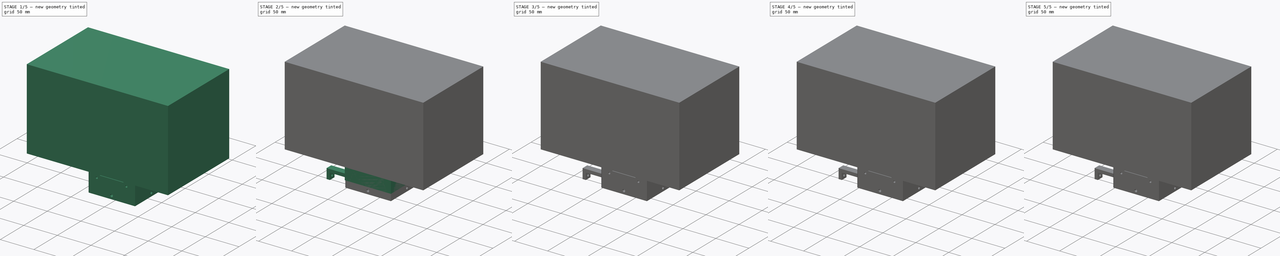
[diagram: build sequence overview — one tinted view per stage of 5, left to right]
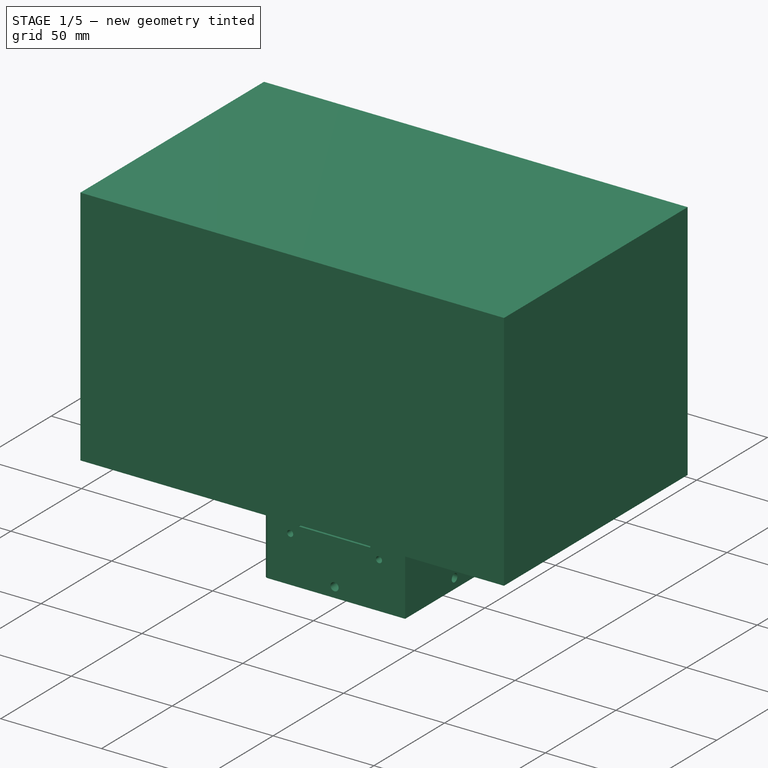
[diagram: stage 1 of 5 — iso view after this stage's code; geometry added in this stage tinted green]
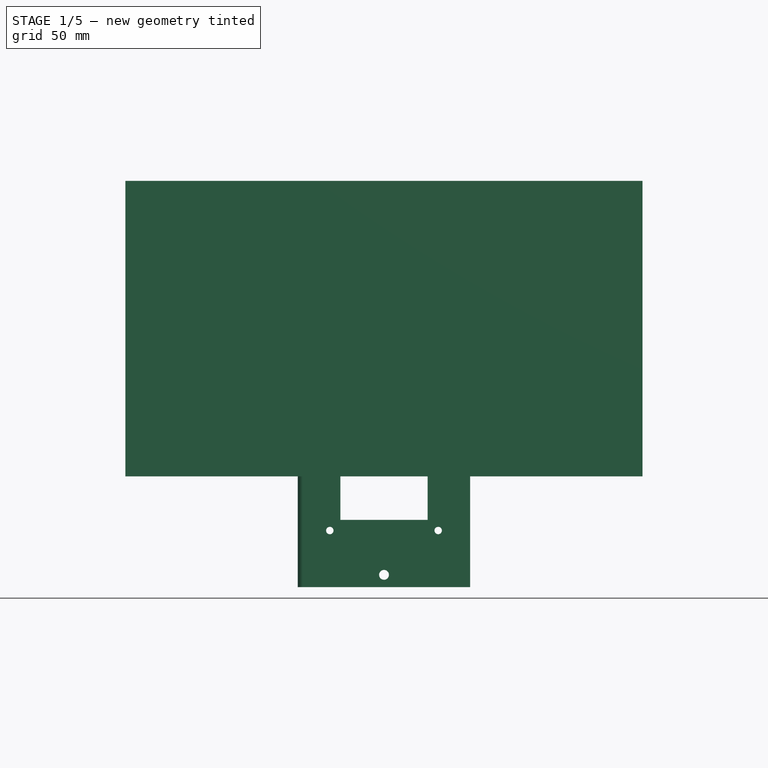
[diagram: stage 1 of 5 — front view after this stage's code; geometry added in this stage tinted green]
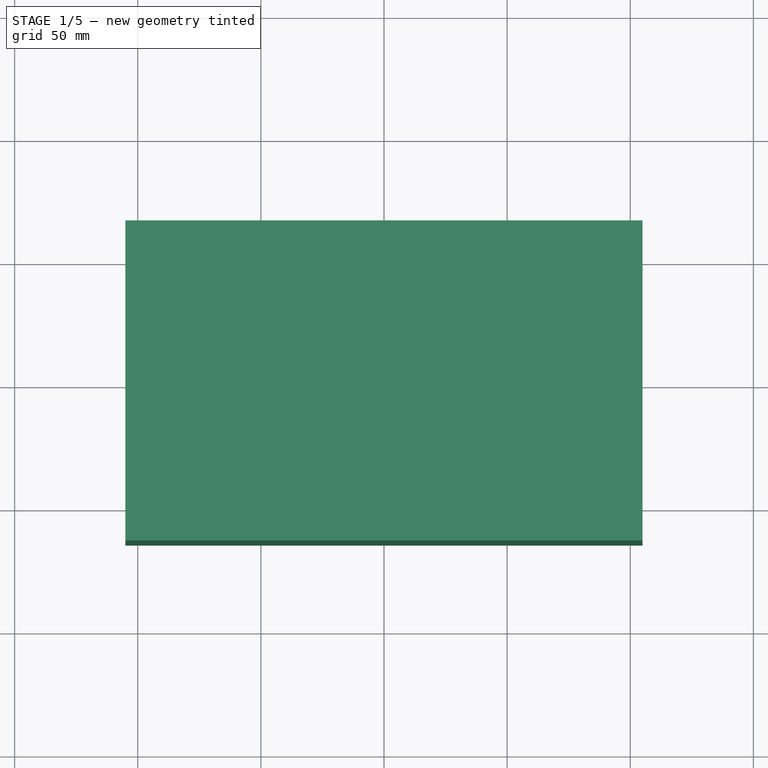
[diagram: stage 1 of 5 — top view after this stage's code; geometry added in this stage tinted green]
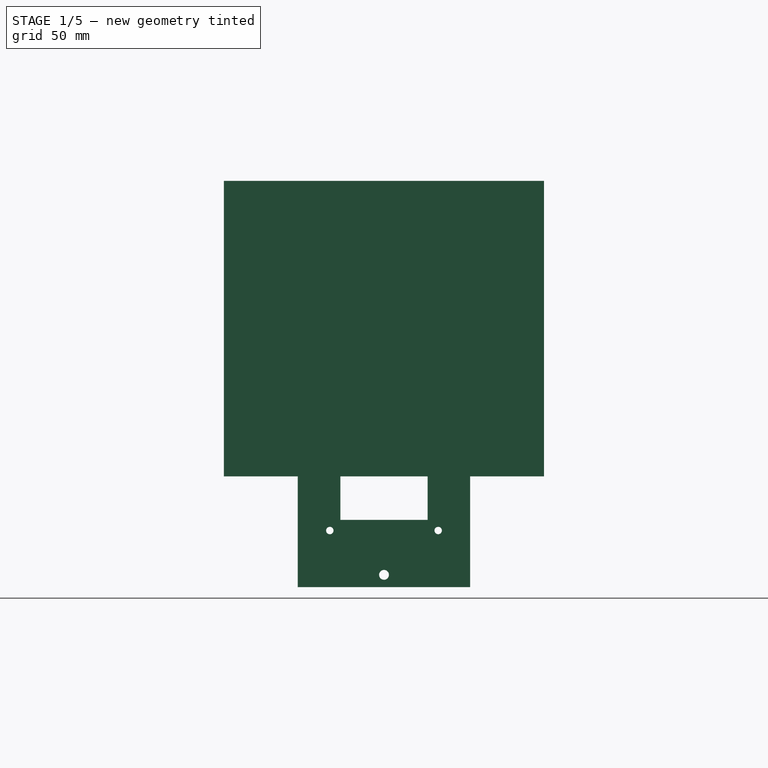
[diagram: stage 1 of 5 — right view after this stage's code; geometry added in this stage tinted green]
FCSTD DOCUMENT  (FreeCAD 0.21R33771 (Git))
Label: CELDA_UNICA_V8
License: All rights reserved
LicenseURL: https://en.wikipedia.org/wiki/All_rights_reserved
objects: Sketcher::SketchObject×60, PartDesign::Pocket×39, PartDesign::Pad×21, PartDesign::PolarPattern×16, PartDesign::Body×13, PartDesign::Fillet×2, PartDesign::Mirrored×1
note: 214 computed .brp shape members not serialized (recipe doc carries the construction recipe); baked Part::Feature solids carry a one-line shape summary decoded from their .brp

FEATURE [PartDesign::Body] Body029  label="BASE_H70"
  Group = -> [Sketch163,Pad052,Sketch164,Pocket100,PolarPattern044,Sketch165,Pocket101,PolarPattern045,Sketch166,Pocket102,PolarPattern046,Sketch167,Pocket103,Fillet004]
  Origin = -> Origin029
  Tip = -> Fillet004
FEATURE [Sketcher::SketchObject] Sketch168
  FullyConstrained = true
  MapMode = 5
  Support = -> [XY_Plane030]
  sketch-geometry (10):
    g0: LineSegment StartX=-27 StartY=-27 StartZ=0 EndX=-27 EndY=27 EndZ=0
    g1: LineSegment StartX=-27 StartY=27 StartZ=0 EndX=27 EndY=27 EndZ=0
    g2: LineSegment StartX=27 StartY=27 StartZ=0 EndX=27 EndY=-27 EndZ=0
    g3: LineSegment StartX=27 StartY=-27 StartZ=0 EndX=-27 EndY=-27 EndZ=0
    g4: GeomPoint X=0 Y=0 Z=0
    g5: LineSegment StartX=-35 StartY=-35 StartZ=0 EndX=-35 EndY=35 EndZ=0
    g6: LineSegment StartX=-35 StartY=35 StartZ=0 EndX=35 EndY=35 EndZ=0
    g7: LineSegment StartX=35 StartY=35 StartZ=0 EndX=35 EndY=-35 EndZ=0
    g8: LineSegment StartX=35 StartY=-35 StartZ=0 EndX=-35 EndY=-35 EndZ=0
    g9: GeomPoint X=0 Y=0 Z=0
  constraints (24):
    c: Coincident(g0,g1)
    c: Coincident(g1,g2)
    c: Coincident(g2,g3)
    c: Coincident(g3,g0)
    c: Horizontal(g1)
    c: Horizontal(g3)
    c: Vertical(g0)
    c: Vertical(g2)
    c: Symmetric(g1,g0,g4)
    c: Coincident(g4,g-1)
    c: Equal(g2,g1)
    c: Coincident(g5,g6)
    c: Coincident(g6,g7)
    c: Coincident(g7,g8)
    c: Coincident(g8,g5)
    c: Horizontal(g6)
    c: Horizontal(g8)
    c: Vertical(g5)
    c: Vertical(g7)
    c: Symmetric(g6,g5,g9)
    c: Coincident(g9,g4)
    c: Equal(g7,g6)
    c: DistanceY(g7,g7) = 70
    c: DistanceY(g1,g6) = 8
FEATURE [PartDesign::Pad] Pad053  label="Base010"
  Direction = (0,0,1)
  Length = 90
  Length2 = 10
  Midplane = true
  Profile = -> Sketch168
  ReferenceAxis = -> Sketch168 [N_Axis]
  Type = 0
FEATURE [Sketcher::SketchObject] Sketch169
  FullyConstrained = true
  MapMode = 5
  Placement = pos=(0,35,0) rot=(0,0.707107,0.707107;3.14159rad)
  Support = -> [Pad053]
  sketch-geometry (5):
    g0: LineSegment StartX=-17.7 StartY=-17.7 StartZ=0 EndX=-17.7 EndY=17.7 EndZ=0
    g1: LineSegment StartX=-17.7 StartY=17.7 StartZ=0 EndX=17.7 EndY=17.7 EndZ=0
    g2: LineSegment StartX=17.7 StartY=17.7 StartZ=0 EndX=17.7 EndY=-17.7 EndZ=0
    g3: LineSegment StartX=17.7 StartY=-17.7 StartZ=0 EndX=-17.7 EndY=-17.7 EndZ=0
    g4: GeomPoint X=0 Y=0 Z=0
  constraints (12):
    c: Coincident(g0,g1)
    c: Coincident(g1,g2)
    c: Coincident(g2,g3)
    c: Coincident(g3,g0)
    c: Horizontal(g1)
    c: Horizontal(g3)
    c: Vertical(g0)
    c: Vertical(g2)
    c: Symmetric(g1,g0,g4)
    c: Coincident(g4,g-1)
    c: Equal(g2,g1)
    c: DistanceY(g2,g2) = 35.4
FEATURE [PartDesign::Pocket] Pocket104  label="Hueco_componentes003"
  BaseFeature = -> Pad053
  Direction = (0,-1,2e-16)
  Length = 0
  Length2 = 5
  Profile = -> Sketch169
  ReferenceAxis = -> Sketch169 [N_Axis]
  Type = 2
FEATURE [PartDesign::PolarPattern] PolarPattern047  label="Patron polar hueco componentes003"
  Angle = 360
  Axis = -> Z_Axis030
  BaseFeature = -> Pocket104
  Occurrences = 4
  Originals = -> [Pocket104]
FEATURE [Sketcher::SketchObject] Sketch170
  ExternalGeometry = -> [PolarPattern047]
  FullyConstrained = true
  MapMode = 5
  Placement = pos=(0,35,0) rot=(0,0.707107,0.707107;3.14159rad)
  Support = -> [PolarPattern047]
  sketch-geometry (3):
    g0: GeomPoint X=0 Y=1e-16 Z=0
    g1: Circle CenterX=0 CenterY=40 CenterZ=0 NormalX=0 NormalY=0 NormalZ=1 AngleXU=0 Radius=2
    g2: Circle CenterX=0 CenterY=-40 CenterZ=0 NormalX=0 NormalY=0 NormalZ=1 AngleXU=0 Radius=2
  constraints (7):
    c: Coincident(g0,g-1)
    c: PointOnObject(g1,g-2)
    c: DistanceY(g1,g-3) = 5
    c: PointOnObject(g2,g-2)
    c: DistanceY(g-4,g2) = 5
    c: Equal(g1,g2)
    c: Diameter(g1) = 4
FEATURE [PartDesign::Pocket] Pocket105  label="Hueco tornillo tapas003"
  BaseFeature = -> PolarPattern047
  Direction = (0,-1,2e-16)
  Length = 10
  Length2 = 5
  Profile = -> Sketch170
  ReferenceAxis = -> Sketch170 [N_Axis]
  Type = 0
FEATURE [PartDesign::PolarPattern] PolarPattern048  label="Patron polar hueco tornillo tapas003"
  Angle = 360
  Axis = -> Z_Axis030
  BaseFeature = -> Pocket105
  Occurrences = 4
  Originals = -> [Pocket105]
FEATURE [Sketcher::SketchObject] Sketch171
  FullyConstrained = true
  MapMode = 5
  Placement = pos=(0,35,0) rot=(0,0.707107,0.707107;3.14159rad)
  Support = -> [PolarPattern048]
  sketch-geometry (4):
    g0: Circle CenterX=-22 CenterY=22 CenterZ=0 NormalX=0 NormalY=0 NormalZ=1 AngleXU=0 Radius=1.5
    g1: Circle CenterX=22 CenterY=22 CenterZ=0 NormalX=0 NormalY=0 NormalZ=1 AngleXU=0 Radius=1.5
    g2: Circle CenterX=-22 CenterY=-22 CenterZ=0 NormalX=0 NormalY=0 NormalZ=1 AngleXU=0 Radius=1.5
    g3: Circle CenterX=22 CenterY=-22 CenterZ=0 NormalX=0 NormalY=0 NormalZ=1 AngleXU=0 Radius=1.5
  constraints (12):
    c: Equal(g1,g0)
    c: Equal(g1,g2)
    c: Equal(g1,g3)
    c: Diameter(g1) = 3
    c: DistanceX(g2,g0) = 0
    c: DistanceY(g0,g1) = 0
    c: DistanceY(g3,g2) = 0
    c: DistanceX(g3,g1) = 0
    c: DistanceY(g-1,g0) = 22
    c: DistanceX(g0,g-1) = 22
    c: DistanceX(g-1,g3) = 22
    c: DistanceY(g3,g-1) = 22
FEATURE [PartDesign::Pocket] Pocket106  label="Hueco insertos pestaña exterior componentes003"
  BaseFeature = -> PolarPattern048
  Direction = (0,-1,2e-16)
  Length = 0
  Length2 = 5
  Profile = -> Sketch171
  ReferenceAxis = -> Sketch171 [N_Axis]
  Type = 1
FEATURE [PartDesign::PolarPattern] PolarPattern049  label="Patron polar hueco insertos pestaña exterior003"
  Angle = 360
  Axis = -> Z_Axis030
  BaseFeature = -> Pocket106
  Occurrences = 4
  Originals = -> [Pocket106]
FEATURE [Sketcher::SketchObject] Sketch172
  ExternalGeometry = -> [PolarPattern049]
  FullyConstrained = true
  MapMode = 5
  Placement = pos=(-35,0,0) rot=(0.57735,-0.57735,-0.57735;2.0944rad)
  Support = -> [PolarPattern049]
  sketch-geometry (5):
    g0: GeomPoint X=0 Y=0 Z=0
    g1: Circle CenterX=-30 CenterY=30 CenterZ=0 NormalX=0 NormalY=0 NormalZ=1 AngleXU=0 Radius=2
    g2: Circle CenterX=-30 CenterY=-30 CenterZ=0 NormalX=0 NormalY=0 NormalZ=1 AngleXU=0 Radius=2
    g3: Circle CenterX=30 CenterY=-30 CenterZ=0 NormalX=0 NormalY=0 NormalZ=1 AngleXU=0 Radius=2
    g4: Circle CenterX=30 CenterY=30 CenterZ=0 NormalX=0 NormalY=0 NormalZ=1 AngleXU=0 Radius=2
  constraints (13):
    c: Coincident(g0,g-1)
    c: Equal(g2,g3)
    c: Equal(g2,g4)
    c: Equal(g2,g1)
    c: Diameter(g2) = 4
    c: DistanceX(g2,g1) = 0
    c: DistanceY(g3,g2) = 0
    c: DistanceX(g4,g3) = 0
    c: DistanceY(g1,g4) = 0
    c: DistanceX(g1,g0) = 30
    c: DistanceY(g0,g1) = 30
    c: DistanceX(g0,g3) = 30
    c: DistanceY(g3,g0) = 30
FEATURE [PartDesign::Pocket] Pocket107  label="Hueco insertos pata apoyo003"
  BaseFeature = -> PolarPattern049
  Direction = (1,0,0)
  Length = 5
  Length2 = 5
  Profile = -> Sketch172
  ReferenceAxis = -> Sketch172 [N_Axis]
  Type = 0
FEATURE [PartDesign::Fillet] Fillet005
  Base = -> Pocket107 [Edge4,Edge1,Edge19,Edge44]
  BaseFeature = -> Pocket107
  Radius = 2
  SupportTransform = false
  UseAllEdges = false
FEATURE [PartDesign::Body] Body033  label="SOPORTE_LED_1_DIODO"
  Group = -> [Sketch178,Pad056,Sketch179,Pad057,Sketch180,Pocket111,Sketch181,Pocket112,Sketch182,Pocket113,Sketch184,Pocket115,PolarPattern050,Sketch185,Pocket116]
  Origin = -> Origin033
  Placement = pos=(173,-209,0) rot=(0,0,1;0rad)
  Tip = -> Pocket116
FEATURE [Sketcher::SketchObject] Sketch186
  FullyConstrained = true
  MapMode = 5
  Support = -> [XY_Plane034]
  sketch-geometry (5):
    g0: LineSegment StartX=-105 StartY=-65 StartZ=0 EndX=-105 EndY=65 EndZ=0
    g1: LineSegment StartX=-105 StartY=65 StartZ=0 EndX=105 EndY=65 EndZ=0
    g2: LineSegment StartX=105 StartY=65 StartZ=0 EndX=105 EndY=-65 EndZ=0
    g3: LineSegment StartX=105 StartY=-65 StartZ=0 EndX=-105 EndY=-65 EndZ=0
    g4: GeomPoint X=0 Y=0 Z=0
  constraints (12):
    c: Coincident(g0,g1)
    c: Coincident(g1,g2)
    c: Coincident(g2,g3)
    c: Coincident(g3,g0)
    c: Horizontal(g1)
    c: Horizontal(g3)
    c: Vertical(g0)
    c: Vertical(g2)
    c: Symmetric(g1,g0,g4)
    c: Coincident(g4,g-1)
    c: DistanceX(g3,g3) = 210
    c: DistanceY(g2,g2) = 130
FEATURE [PartDesign::Pad] Pad058  label="Base_Esxtrusion"
  Direction = (0,0,1)
  Length = 120
  Length2 = 10
  Profile = -> Sketch186
  ReferenceAxis = -> Sketch186 [N_Axis]
  Type = 0
FEATURE [Sketcher::SketchObject] Sketch187
  FullyConstrained = true
  MapMode = 5
  Placement = pos=(0,0,0) rot=(1,0,0;3.14159rad)
  Support = -> [Pad058]
  sketch-geometry (5):
    g0: LineSegment StartX=-102.5 StartY=-62.5 StartZ=0 EndX=-102.5 EndY=62.5 EndZ=0
    g1: LineSegment StartX=-102.5 StartY=62.5 StartZ=0 EndX=102.5 EndY=62.5 EndZ=0
    g2: LineSegment StartX=102.5 StartY=62.5 StartZ=0 EndX=102.5 EndY=-62.5 EndZ=0
    g3: LineSegment StartX=102.5 StartY=-62.5 StartZ=0 EndX=-102.5 EndY=-62.5 EndZ=0
    g4: GeomPoint X=0 Y=0 Z=0
  constraints (12):
    c: Coincident(g0,g1)
    c: Coincident(g1,g2)
    c: Coincident(g2,g3)
    c: Coincident(g3,g0)
    c: Horizontal(g1)
    c: Horizontal(g3)
    c: Vertical(g0)
    c: Vertical(g2)
    c: Symmetric(g1,g0,g4)
    c: Coincident(g4,g-1)
    c: DistanceX(g1,g1) = 205
    c: DistanceY(g2,g2) = 125
FEATURE [PartDesign::Pocket] Pocket117  label="Vaciado"
  BaseFeature = -> Pad058
  Direction = (0,0,1)
  Length = 115
  Length2 = 5
  Profile = -> Sketch187
  ReferenceAxis = -> Sketch187 [N_Axis]
  Type = 0
FEATURE [Sketcher::SketchObject] Sketch188
  ExternalGeometry = -> [Pocket117]
  FullyConstrained = true
  MapMode = 5
  Placement = pos=(0,0,115) rot=(1,0,0;3.14159rad)
  Support = -> [Pocket117]
  sketch-geometry (8):
    g0: Circle CenterX=-87.5 CenterY=47.5 CenterZ=0 NormalX=0 NormalY=0 NormalZ=1 AngleXU=0 Radius=6
    g1: Circle CenterX=-87.5 CenterY=-1.5 CenterZ=0 NormalX=0 NormalY=0 NormalZ=1 AngleXU=0 Radius=6
    g2: Circle CenterX=-29.5 CenterY=47.5 CenterZ=0 NormalX=0 NormalY=0 NormalZ=1 AngleXU=0 Radius=6
    g3: Circle CenterX=-29.5 CenterY=-1.5 CenterZ=0 NormalX=0 NormalY=0 NormalZ=1 AngleXU=0 Radius=6
    g4: Circle CenterX=-87.5 CenterY=-1.5 CenterZ=0 NormalX=0 NormalY=0 NormalZ=1 AngleXU=0 Radius=2
    g5: Circle CenterX=-87.5 CenterY=47.5 CenterZ=0 NormalX=0 NormalY=0 NormalZ=1 AngleXU=0 Radius=2
    g6: Circle CenterX=-29.5 CenterY=47.5 CenterZ=0 NormalX=0 NormalY=0 NormalZ=1 AngleXU=0 Radius=2
    g7: Circle CenterX=-29.5 CenterY=-1.5 CenterZ=0 NormalX=0 NormalY=0 NormalZ=1 AngleXU=0 Radius=2
  constraints (20):
    c: Coincident(g4,g1)
    c: Coincident(g5,g0)
    c: Coincident(g6,g2)
    c: Coincident(g7,g3)
    c: DistanceY(g1,g3) = 0
    c: DistanceX(g1,g0) = 0
    c: DistanceX(g2,g3) = 0
    c: DistanceY(g2,g0) = 0
    c: DistanceY(g1,g0) = 49
    c: DistanceX(g0,g2) = 58
    c: Equal(g5,g6)
    c: Equal(g5,g7)
    c: Equal(g5,g4)
    c: Diameter(g5) = 4
    c: Equal(g0,g2)
    c: Equal(g0,g3)
    c: Equal(g0,g1)
    c: Diameter(g0) = 12
    c: DistanceY(g0,g-4) = 15
    c: DistanceX(g-4,g0) = 15
FEATURE [PartDesign::Pad] Pad059  label="Soporte portenta"
  BaseFeature = -> Pocket117
  Direction = (0,0,-1)
  Length = 15
  Length2 = 10
  Profile = -> Sketch188
  ReferenceAxis = -> Sketch188 [N_Axis]
  Type = 0
FEATURE [Sketcher::SketchObject] Sketch189
  ExternalGeometry = -> [Pad059]
  FullyConstrained = true
  MapMode = 5
  Placement = pos=(0,0,115) rot=(1,0,0;3.14159rad)
  Support = -> [Pad059]
  sketch-geometry (4):
    g0: Circle CenterX=-87.5 CenterY=-26.5 CenterZ=0 NormalX=0 NormalY=0 NormalZ=1 AngleXU=0 Radius=5
    g1: Circle CenterX=-87.5 CenterY=-44.5 CenterZ=0 NormalX=0 NormalY=0 NormalZ=1 AngleXU=0 Radius=5
    g2: Circle CenterX=-87.5 CenterY=-26.5 CenterZ=0 NormalX=0 NormalY=0 NormalZ=1 AngleXU=0 Radius=2
    g3: Circle CenterX=-87.5 CenterY=-44.5 CenterZ=0 NormalX=0 NormalY=0 NormalZ=1 AngleXU=0 Radius=2
  constraints (10):
    c: Coincident(g2,g0)
    c: Coincident(g3,g1)
    c: DistanceY(g1,g0) = 18
    c: DistanceX(g0,g1) = 0
    c: DistanceX(g0,g-3) = 0
    c: DistanceY(g0,g-3) = 25
    c: Equal(g2,g3)
    c: Diameter(g2) = 4
    c: Equal(g0,g1)
    c: Diameter(g0) = 10
FEATURE [PartDesign::Pad] Pad060  label="Soporte_RTC"
  BaseFeature = -> Pad059
  Direction = (0,0,-1)
  Length = 15
  Length2 = 10
  Profile = -> Sketch189
  ReferenceAxis = -> Sketch189 [N_Axis]
  Type = 0
FEATURE [Sketcher::SketchObject] Sketch194
  ExternalGeometry = -> [Fillet005]
  FullyConstrained = true
  MapMode = 5
  Placement = pos=(0,0,45) rot=(0,0,1;0rad)
  Support = -> [Fillet005]
  sketch-geometry (7):
    g0: GeomPoint X=0 Y=0 Z=0
    g1: LineSegment StartX=-45 StartY=45 StartZ=0 EndX=-27 EndY=45 EndZ=0
    g2: LineSegment StartX=-27 StartY=45 StartZ=0 EndX=-27 EndY=27 EndZ=0
    g3: LineSegment StartX=-27 StartY=27 StartZ=0 EndX=-45 EndY=27 EndZ=0
    g4: LineSegment StartX=-45 StartY=27 StartZ=0 EndX=-45 EndY=45 EndZ=0
    g5: Circle CenterX=-40 CenterY=40 CenterZ=0 NormalX=0 NormalY=0 NormalZ=1 AngleXU=0 Radius=1.65
    g6: GeomPoint X=0 Y=0 Z=0
  constraints (16):
    c: Coincident(g0,g-1)
    c: Coincident(g1,g2)
    c: Coincident(g2,g3)
    c: Coincident(g3,g4)
    c: Coincident(g4,g1)
    c: Horizontal(g1)
    c: Horizontal(g3)
    c: Vertical(g2)
    c: Vertical(g4)
    c: Coincident(g2,g-3)
    c: DistanceX(g3,g3) = 18
    c: DistanceY(g4,g4) = 18
    c: Diameter(g5) = 3.3
    c: DistanceX(g1,g5) = 5
    c: DistanceY(g5,g1) = 5
    c: Coincident(g6,g0)
FEATURE [PartDesign::Pad] Pad063  label="Apaño sujeccion"
  BaseFeature = -> Fillet005
  Direction = (0,0,1)
  Length = 10
  Length2 = 10
  Profile = -> Sketch194
  ReferenceAxis = -> Sketch194 [N_Axis]
  Reversed = true
  Type = 0
FEATURE [PartDesign::Body] Body030  label="BASE_H90"
  Group = -> [Sketch168,Pad053,Sketch169,Pocket104,PolarPattern047,Sketch170,Pocket105,PolarPattern048,Sketch171,Pocket106,PolarPattern049,Sketch172,Pocket107,Fillet005,Sketch194,Pad063,PolarPattern051]
  Origin = -> Origin030
  Tip = -> PolarPattern051
FEATURE [Sketcher::SketchObject] Sketch195
  ExternalGeometry = -> [Sketch187]
  FullyConstrained = true
  MapMode = 5
  Placement = pos=(0,0,115) rot=(1,0,0;3.14159rad)
  Support = -> [Pad060]
  sketch-geometry (5):
    g0: LineSegment StartX=12.5 StartY=62.5 StartZ=0 EndX=102.5 EndY=62.5 EndZ=0
    g1: LineSegment StartX=102.5 StartY=62.5 StartZ=0 EndX=102.5 EndY=-27.5 EndZ=0
    g2: LineSegment StartX=102.5 StartY=-27.5 StartZ=0 EndX=12.5 EndY=-27.5 EndZ=0
    g3: LineSegment StartX=12.5 StartY=-27.5 StartZ=0 EndX=12.5 EndY=62.5 EndZ=0
    g4: Circle CenterX=57.5 CenterY=17.5 CenterZ=0 NormalX=0 NormalY=0 NormalZ=1 AngleXU=0 Radius=35
  constraints (15):
    c: Coincident(g0,g1)
    c: Coincident(g1,g2)
    c: Coincident(g2,g3)
    c: Coincident(g3,g0)
    c: Horizontal(g0)
    c: Horizontal(g2)
    c: Vertical(g1)
    c: Vertical(g3)
    c: DistanceX(g0,g0) = 90
    c: DistanceY(g3,g3) = 90
    c: DistanceX(g0,g-3) = 0
    c: DistanceY(g0,g-3) = 0
    c: Diameter(g4) = 70
    c: DistanceX(g4,g0) = 45
    c: DistanceY(g4,g0) = 45
FEATURE [PartDesign::Pad] Pad064  label="Soporte celda"
  BaseFeature = -> Pad060
  Direction = (0,0,-1)
  Length = 35
  Length2 = 10
  Profile = -> Sketch195
  ReferenceAxis = -> Sketch195 [N_Axis]
  Type = 0
FEATURE [Sketcher::SketchObject] Sketch196
  ExternalGeometry = -> [Pad064]
  FullyConstrained = true
  MapMode = 5
  Placement = pos=(0,0,80) rot=(1,0,0;3.14159rad)
  Support = -> [Pad064]
  sketch-geometry (4):
    g0: Circle CenterX=17.5 CenterY=57.5 CenterZ=0 NormalX=0 NormalY=0 NormalZ=1 AngleXU=0 Radius=2
    g1: Circle CenterX=97.5 CenterY=57.5 CenterZ=0 NormalX=0 NormalY=0 NormalZ=1 AngleXU=0 Radius=2
    g2: Circle CenterX=17.5 CenterY=-22.5 CenterZ=0 NormalX=0 NormalY=0 NormalZ=1 AngleXU=0 Radius=2
    g3: Circle CenterX=97.5 CenterY=-22.5 CenterZ=0 NormalX=0 NormalY=0 NormalZ=1 AngleXU=0 Radius=2
  constraints (12):
    c: DistanceY(g3,g2) = 0
    c: DistanceY(g1,g0) = 0
    c: DistanceX(g2,g0) = 0
    c: DistanceX(g3,g1) = 0
    c: DistanceX(g3,g-4) = 5
    c: DistanceY(g-4,g3) = 5
    c: DistanceX(g-3,g0) = 5
    c: DistanceY(g0,g-3) = 5
    c: Equal(g0,g1)
    c: Equal(g0,g3)
    c: Equal(g0,g2)
    c: Diameter(g0) = 4
FEATURE [PartDesign::Pocket] Pocket118
  BaseFeature = -> Pad064
  Direction = (0,0,1)
  Length = 20
  Length2 = 5
  Profile = -> Sketch196
  ReferenceAxis = -> Sketch196 [N_Axis]
  Type = 0
FEATURE [PartDesign::Body] Body034  label="CAJA"
  Group = -> [Sketch186,Pad058,Sketch187,Pocket117,Sketch188,Pad059,Sketch189,Pad060,Sketch195,Pad064,Sketch196,Pocket118]
  Origin = -> Origin034
  Tip = -> Pocket118
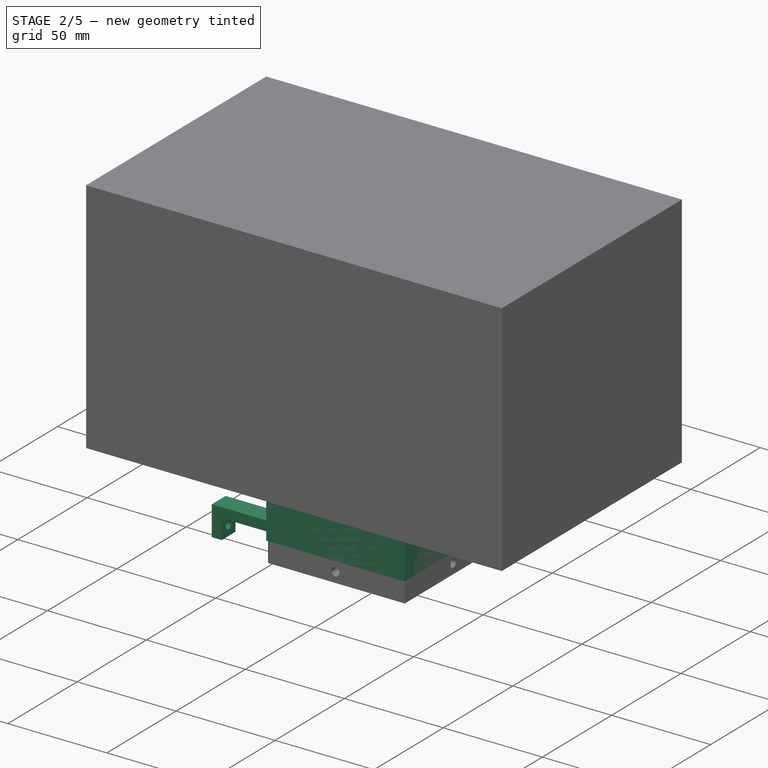
[diagram: stage 2 of 5 — iso view after this stage's code; geometry added in this stage tinted green]
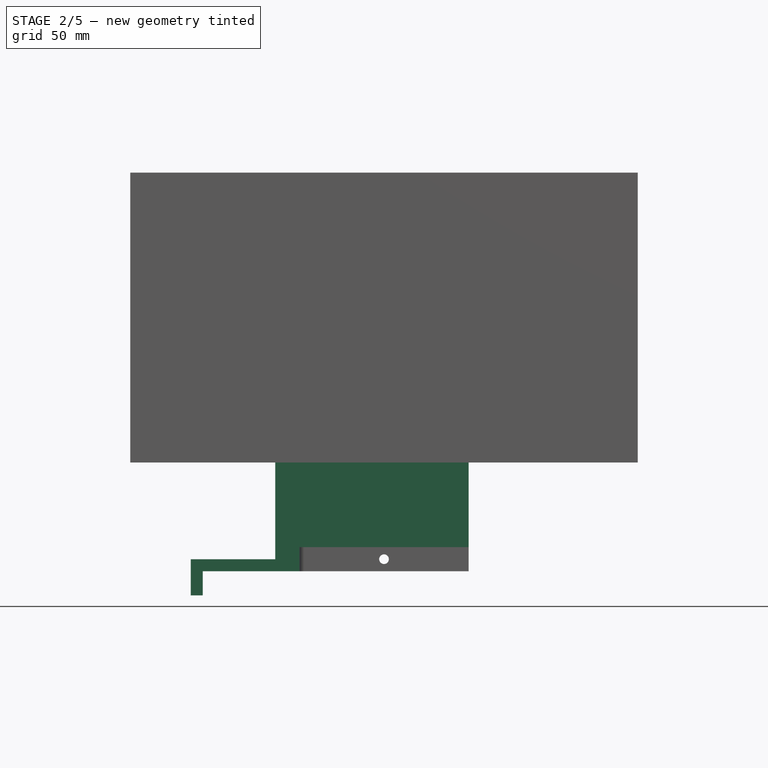
[diagram: stage 2 of 5 — front view after this stage's code; geometry added in this stage tinted green]
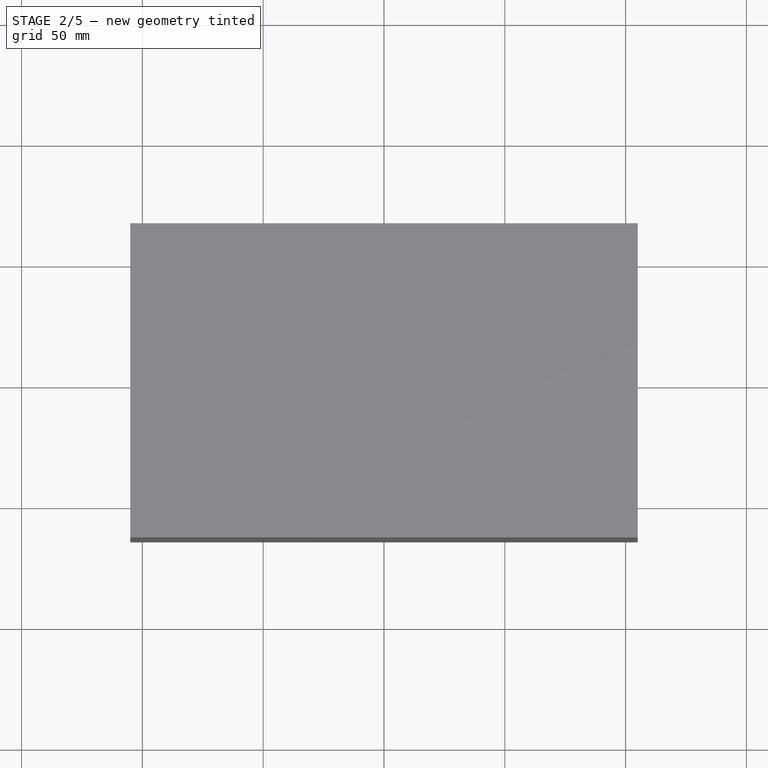
[diagram: stage 2 of 5 — top view after this stage's code; geometry added in this stage tinted green]
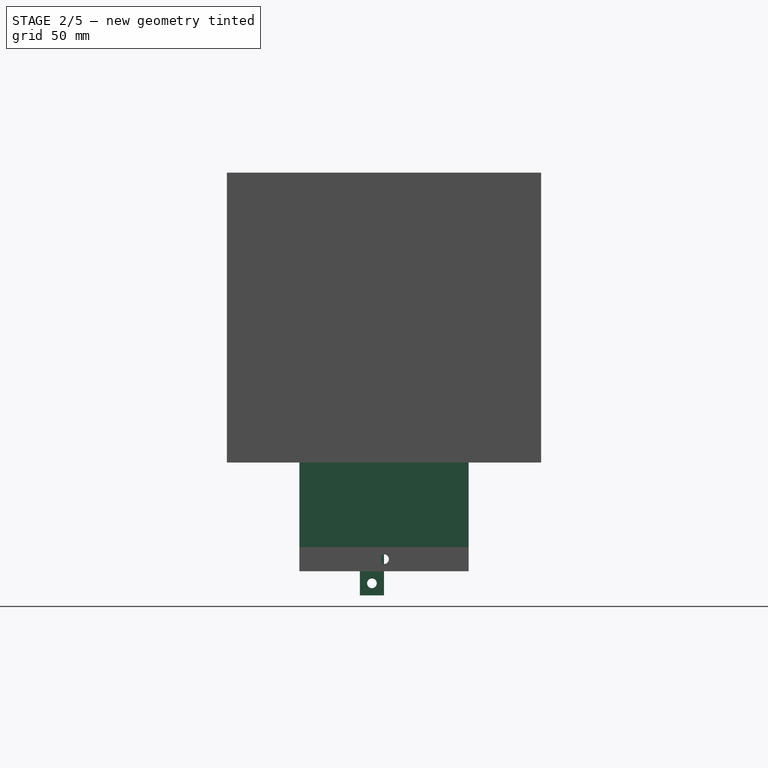
[diagram: stage 2 of 5 — right view after this stage's code; geometry added in this stage tinted green]
FEATURE [PartDesign::Body] Body027  label="APOYO_RESINADO"
  Group = -> [Sketch155,Pad050,Sketch157,Pocket095]
  Origin = -> Origin027
  Placement = pos=(0,0,134) rot=(0,0,1;0rad)
  Tip = -> Pocket095
FEATURE [Sketcher::SketchObject] Sketch163
  FullyConstrained = true
  MapMode = 5
  Support = -> [XY_Plane029]
  sketch-geometry (10):
    g0: LineSegment StartX=-27 StartY=-27 StartZ=0 EndX=-27 EndY=27 EndZ=0
    g1: LineSegment StartX=-27 StartY=27 StartZ=0 EndX=27 EndY=27 EndZ=0
    g2: LineSegment StartX=27 StartY=27 StartZ=0 EndX=27 EndY=-27 EndZ=0
    g3: LineSegment StartX=27 StartY=-27 StartZ=0 EndX=-27 EndY=-27 EndZ=0
    g4: GeomPoint X=0 Y=0 Z=0
    g5: LineSegment StartX=-35 StartY=-35 StartZ=0 EndX=-35 EndY=35 EndZ=0
    g6: LineSegment StartX=-35 StartY=35 StartZ=0 EndX=35 EndY=35 EndZ=0
    g7: LineSegment StartX=35 StartY=35 StartZ=0 EndX=35 EndY=-35 EndZ=0
    g8: LineSegment StartX=35 StartY=-35 StartZ=0 EndX=-35 EndY=-35 EndZ=0
    g9: GeomPoint X=0 Y=0 Z=0
  constraints (24):
    c: Coincident(g0,g1)
    c: Coincident(g1,g2)
    c: Coincident(g2,g3)
    c: Coincident(g3,g0)
    c: Horizontal(g1)
    c: Horizontal(g3)
    c: Vertical(g0)
    c: Vertical(g2)
    c: Symmetric(g1,g0,g4)
    c: Coincident(g4,g-1)
    c: Equal(g2,g1)
    c: Coincident(g5,g6)
    c: Coincident(g6,g7)
    c: Coincident(g7,g8)
    c: Coincident(g8,g5)
    c: Horizontal(g6)
    c: Horizontal(g8)
    c: Vertical(g5)
    c: Vertical(g7)
    c: Symmetric(g6,g5,g9)
    c: Coincident(g9,g4)
    c: Equal(g7,g6)
    c: DistanceY(g7,g7) = 70
    c: DistanceY(g1,g6) = 8
FEATURE [PartDesign::Pad] Pad052  label="Base009"
  Direction = (0,0,1)
  Length = 70
  Length2 = 10
  Midplane = true
  Profile = -> Sketch163
  ReferenceAxis = -> Sketch163 [N_Axis]
  Type = 0
FEATURE [Sketcher::SketchObject] Sketch164
  FullyConstrained = true
  MapMode = 5
  Placement = pos=(0,35,0) rot=(0,0.707107,0.707107;3.14159rad)
  Support = -> [Pad052]
  sketch-geometry (5):
    g0: LineSegment StartX=-17.7 StartY=-17.7 StartZ=0 EndX=-17.7 EndY=17.7 EndZ=0
    g1: LineSegment StartX=-17.7 StartY=17.7 StartZ=0 EndX=17.7 EndY=17.7 EndZ=0
    g2: LineSegment StartX=17.7 StartY=17.7 StartZ=0 EndX=17.7 EndY=-17.7 EndZ=0
    g3: LineSegment StartX=17.7 StartY=-17.7 StartZ=0 EndX=-17.7 EndY=-17.7 EndZ=0
    g4: GeomPoint X=0 Y=0 Z=0
  constraints (12):
    c: Coincident(g0,g1)
    c: Coincident(g1,g2)
    c: Coincident(g2,g3)
    c: Coincident(g3,g0)
    c: Horizontal(g1)
    c: Horizontal(g3)
    c: Vertical(g0)
    c: Vertical(g2)
    c: Symmetric(g1,g0,g4)
    c: Coincident(g4,g-1)
    c: Equal(g2,g1)
    c: DistanceY(g2,g2) = 35.4
FEATURE [PartDesign::Pocket] Pocket100  label="Hueco_componentes002"
  BaseFeature = -> Pad052
  Direction = (0,-1,2e-16)
  Length = 0
  Length2 = 5
  Profile = -> Sketch164
  ReferenceAxis = -> Sketch164 [N_Axis]
  Type = 2
FEATURE [Sketcher::SketchObject] Sketch173
  FullyConstrained = true
  MapMode = 5
  Placement = pos=(0,0,0) rot=(1,0,0;1.5708rad)
  Support = -> [XZ_Plane031]
  sketch-geometry (12):
    g0: LineSegment StartX=-35 StartY=-45 StartZ=0 EndX=-35 EndY=45 EndZ=0
    g1: LineSegment StartX=-35 StartY=45 StartZ=0 EndX=-75 EndY=45 EndZ=0
    g2: LineSegment StartX=-75 StartY=45 StartZ=0 EndX=-75 EndY=55 EndZ=0
    g3: LineSegment StartX=-75 StartY=55 StartZ=0 EndX=-80 EndY=55 EndZ=0
    g4: LineSegment StartX=-80 StartY=55 StartZ=0 EndX=-80 EndY=40 EndZ=0
    g5: LineSegment StartX=-80 StartY=40 StartZ=0 EndX=-45 EndY=40 EndZ=0
    g6: LineSegment StartX=-45 StartY=40 StartZ=0 EndX=-45 EndY=-40 EndZ=0
    g7: LineSegment StartX=-45 StartY=-40 StartZ=0 EndX=-80 EndY=-40 EndZ=0
    g8: LineSegment StartX=-80 StartY=-40 StartZ=0 EndX=-80 EndY=-55 EndZ=0
    g9: LineSegment StartX=-80 StartY=-55 StartZ=0 EndX=-75 EndY=-55 EndZ=0
    g10: LineSegment StartX=-75 StartY=-55 StartZ=0 EndX=-75 EndY=-45 EndZ=0
    g11: LineSegment StartX=-75 StartY=-45 StartZ=0 EndX=-35 EndY=-45 EndZ=0
  constraints (36):
    c: Vertical(g0)
    c: Coincident(g1,g0)
    c: Horizontal(g1)
    c: Coincident(g2,g1)
    c: Vertical(g2)
    c: Coincident(g3,g2)
    c: Horizontal(g3)
    c: Coincident(g4,g3)
    c: Vertical(g4)
    c: Coincident(g5,g4)
    c: Horizontal(g5)
    c: Coincident(g6,g5)
    c: Vertical(g6)
    c: Coincident(g7,g6)
    c: Horizontal(g7)
    c: Coincident(g8,g7)
    c: Vertical(g8)
    c: Coincident(g9,g8)
    c: Horizontal(g9)
    c: Coincident(g10,g9)
    c: Vertical(g10)
    c: Coincident(g11,g10)
    c: Coincident(g11,g0)
    c: Horizontal(g11)
    c: DistanceY(g0,g0) = 90
    c: Equal(g1,g11)
    c: DistanceX(g1,g1) = 40
    c: Equal(g9,g3)
    c: DistanceX(g3,g3) = 5
    c: DistanceX(g5,g0) = 10
    c: Equal(g2,g10)
    c: DistanceY(g2,g2) = 10
    c: DistanceY(g4,g0) = 5
    c: DistanceY(g0,g6) = 5
    c: DistanceY(g0,g-1) = 45
    c: DistanceX(g0,g-1) = 35
FEATURE [PartDesign::Pad] Pad054  label="Base011"
  Direction = (0,-1,2e-16)
  Length = 10
  Length2 = 10
  Placement = pos=(0,0,0) rot=(1,0,0;1.5708rad)
  Profile = -> Sketch173
  ReferenceAxis = -> Sketch173 [N_Axis]
  Type = 0
FEATURE [Sketcher::SketchObject] Sketch174
  FullyConstrained = true
  MapMode = 5
  Placement = pos=(-35,0,0) rot=(0.707107,0,0.707107;3.14159rad)
  Support = -> [Pad054]
  sketch-geometry (2):
    g0: Circle CenterX=-30 CenterY=5 CenterZ=0 NormalX=0 NormalY=0 NormalZ=1 AngleXU=0 Radius=1.75
    g1: Circle CenterX=30 CenterY=5 CenterZ=0 NormalX=0 NormalY=0 NormalZ=1 AngleXU=0 Radius=1.75
  constraints (6):
    c: DistanceX(g0,g-1) = 30
    c: DistanceX(g-1,g1) = 30
    c: DistanceY(g1,g0) = 0
    c: DistanceY(g-1,g0) = 5
    c: Equal(g0,g1)
    c: Diameter(g0) = 3.5
FEATURE [PartDesign::Pocket] Pocket108  label="Hueco paso tornillo002"
  BaseFeature = -> Pad054
  Direction = (-1,0,2e-16)
  Length = 5
  Length2 = 5
  Placement = pos=(0,0,0) rot=(1,0,0;1.5708rad)
  Profile = -> Sketch174
  ReferenceAxis = -> Sketch174 [N_Axis]
  Type = 1
FEATURE [Sketcher::SketchObject] Sketch176
  FullyConstrained = false
  MapMode = 5
  Placement = pos=(-75,0,0) rot=(0.707107,0,0.707107;3.14159rad)
  sketch-geometry (1):
    g0: Circle CenterX=-50 CenterY=5 CenterZ=0 NormalX=0 NormalY=0 NormalZ=1 AngleXU=0 Radius=2
  constraints (1):
    c: Diameter(g0) = 4
FEATURE [PartDesign::Pocket] Pocket110  label="Hueco paso tirafondo"
  BaseFeature = -> Pocket108
  Direction = (-1,0,2e-16)
  Length = 5
  Length2 = 5
  Placement = pos=(0,0,0) rot=(1,0,0;1.5708rad)
  Profile = -> Sketch176
  ReferenceAxis = -> Sketch176 [N_Axis]
  Type = 0
FEATURE [PartDesign::Mirrored] Mirrored  label="Simetria hueco tirafondo"
  BaseFeature = -> Pocket110
  MirrorPlane = -> Sketch176 [V_Axis]
  Originals = -> [Pocket110]
  Placement = pos=(0,0,0) rot=(1,0,0;1.5708rad)
FEATURE [PartDesign::Body] Body031  label="PATA"
  Group = -> [Sketch173,Pad054,Sketch174,Pocket108,Sketch176,Pocket110,Mirrored]
  Origin = -> Origin031
  Tip = -> Mirrored
FEATURE [Sketcher::SketchObject] Sketch177
  FullyConstrained = true
  MapMode = 5
  Support = -> [XY_Plane032]
  sketch-geometry (21):
    g0: LineSegment StartX=-22.5 StartY=-22.5 StartZ=0 EndX=-22.5 EndY=22.5 EndZ=0
    g1: LineSegment StartX=-22.5 StartY=22.5 StartZ=0 EndX=22.5 EndY=22.5 EndZ=0
    g2: LineSegment StartX=22.5 StartY=22.5 StartZ=0 EndX=22.5 EndY=-22.5 EndZ=0
    g3: LineSegment StartX=22.5 StartY=-22.5 StartZ=0 EndX=-22.5 EndY=-22.5 EndZ=0
    g4: GeomPoint X=0 Y=0 Z=0
    g5: LineSegment StartX=-17.5 StartY=17.5 StartZ=0 EndX=-4 EndY=17.5 EndZ=0
    g6: LineSegment StartX=-4 StartY=17.5 StartZ=0 EndX=-4 EndY=4 EndZ=0
    g7: LineSegment StartX=-4 StartY=4 StartZ=0 EndX=-17.5 EndY=4 EndZ=0
    g8: LineSegment StartX=-17.5 StartY=4 StartZ=0 EndX=-17.5 EndY=17.5 EndZ=0
    g9: LineSegment StartX=4 StartY=17.75 StartZ=0 EndX=17.75 EndY=17.75 EndZ=0
    g10: LineSegment StartX=17.75 StartY=17.75 StartZ=0 EndX=17.75 EndY=4 EndZ=0
    g11: LineSegment StartX=17.75 StartY=4 StartZ=0 EndX=4 EndY=4 EndZ=0
    g12: LineSegment StartX=4 StartY=4 StartZ=0 EndX=4 EndY=17.75 EndZ=0
    g13: LineSegment StartX=-18 StartY=-5 StartZ=0 EndX=-4 EndY=-5 EndZ=0
    g14: LineSegment StartX=-4 StartY=-5 StartZ=0 EndX=-4 EndY=-19 EndZ=0
    g15: LineSegment StartX=-4 StartY=-19 StartZ=0 EndX=-18 EndY=-19 EndZ=0
    g16: LineSegment StartX=-18 StartY=-19 StartZ=0 EndX=-18 EndY=-5 EndZ=0
    g17: LineSegment StartX=4 StartY=-5 StartZ=0 EndX=18.25 EndY=-5 EndZ=0
    g18: LineSegment StartX=18.25 StartY=-5 StartZ=0 EndX=18.25 EndY=-19.25 EndZ=0
    g19: LineSegment StartX=18.25 StartY=-19.25 StartZ=0 EndX=4 EndY=-19.25 EndZ=0
    g20: LineSegment StartX=4 StartY=-19.25 StartZ=0 EndX=4 EndY=-5 EndZ=0
  constraints (60):
    c: Coincident(g0,g1)
    c: Coincident(g1,g2)
    c: Coincident(g2,g3)
    c: Coincident(g3,g0)
    c: Horizontal(g1)
    c: Horizontal(g3)
    c: Vertical(g0)
    c: Vertical(g2)
    c: Symmetric(g1,g0,g4)
    c: Coincident(g4,g-1)
    c: Coincident(g5,g6)
    c: Coincident(g6,g7)
    c: Coincident(g7,g8)
    c: Coincident(g8,g5)
    c: Horizontal(g5)
    c: Horizontal(g7)
    c: Vertical(g6)
    c: Vertical(g8)
    c: Coincident(g9,g10)
    c: Coincident(g10,g11)
    c: Coincident(g11,g12)
    c: Coincident(g12,g9)
    c: Horizontal(g9)
    c: Horizontal(g11)
    c: Vertical(g10)
    c: Vertical(g12)
    c: Coincident(g13,g14)
    c: Coincident(g14,g15)
    c: Coincident(g15,g16)
    c: Coincident(g16,g13)
    c: Horizontal(g13)
    c: Horizontal(g15)
    c: Vertical(g14)
    c: Vertical(g16)
    c: Coincident(g17,g18)
    c: Coincident(g18,g19)
    c: Coincident(g19,g20)
    c: Coincident(g20,g17)
    c: Horizontal(g17)
    c: Horizontal(g19)
    c: Vertical(g18)
    c: Vertical(g20)
    c: Equal(g5,g6)
    c: Equal(g9,g10)
    c: Equal(g13,g14)
    c: Equal(g17,g18)
    c: DistanceX(g5,g5) = 13.5
    c: DistanceX(g9,g9) = 13.75
    c: DistanceX(g13,g13) = 14
    c: DistanceX(g17,g17) = 14.25
    c: DistanceX(g1,g1) = 45
    c: DistanceY(g2,g2) = 45
    c: DistanceX(g13,g6) = 0
    c: DistanceX(g17,g11) = 0
    c: DistanceY(g4,g6) = 4
    c: DistanceY(g13,g4) = 5
    c: DistanceY(g11,g6) = 0
    c: DistanceY(g13,g17) = 0
    c: DistanceX(g6,g4) = 4
    c: DistanceX(g4,g11) = 4
FEATURE [PartDesign::Pad] Pad055
  Direction = (0,0,1)
  Length = 10
  Length2 = 10
  Profile = -> Sketch177
  ReferenceAxis = -> Sketch177 [N_Axis]
  Type = 0
FEATURE [PartDesign::Body] Body032  label="PLANTILLA_PROBETA"
  Group = -> [Sketch177,Pad055]
  Origin = -> Origin032
  Tip = -> Pad055
FEATURE [Sketcher::SketchObject] Sketch178
  FullyConstrained = true
  MapMode = 5
  Placement = pos=(0,0,0) rot=(1,0,0;1.5708rad)
  Support = -> [XZ_Plane033]
  sketch-geometry (5):
    g0: LineSegment StartX=-25 StartY=-25 StartZ=0 EndX=-25 EndY=25 EndZ=0
    g1: LineSegment StartX=-25 StartY=25 StartZ=0 EndX=25 EndY=25 EndZ=0
    g2: LineSegment StartX=25 StartY=25 StartZ=0 EndX=25 EndY=-25 EndZ=0
    g3: LineSegment StartX=25 StartY=-25 StartZ=0 EndX=-25 EndY=-25 EndZ=0
    g4: GeomPoint X=-1e-16 Y=1e-16 Z=0
  constraints (12):
    c: Coincident(g0,g1)
    c: Coincident(g1,g2)
    c: Coincident(g2,g3)
    c: Coincident(g3,g0)
    c: Horizontal(g1)
    c: Horizontal(g3)
    c: Vertical(g0)
    c: Vertical(g2)
    c: Symmetric(g1,g0,g4)
    c: Coincident(g4,g-1)
    c: Equal(g1,g2)
    c: DistanceY(g2,g2) = 50
FEATURE [PartDesign::Pad] Pad056  label="Base exterior001"
  Direction = (0,-1,-2e-16)
  Length = 2
  Length2 = 10
  Placement = pos=(0,0,0) rot=(1,0,0;1.5708rad)
  Profile = -> Sketch178
  ReferenceAxis = -> Sketch178 [N_Axis]
  Type = 0
FEATURE [Sketcher::SketchObject] Sketch179
  FullyConstrained = true
  MapMode = 5
  Placement = pos=(0,-2,0) rot=(1,0,0;1.5708rad)
  Support = -> [Pad056]
  sketch-geometry (5):
    g0: LineSegment StartX=-17.5 StartY=-17.5 StartZ=0 EndX=-17.5 EndY=17.5 EndZ=0
    g1: LineSegment StartX=-17.5 StartY=17.5 StartZ=0 EndX=17.5 EndY=17.5 EndZ=0
    g2: LineSegment StartX=17.5 StartY=17.5 StartZ=0 EndX=17.5 EndY=-17.5 EndZ=0
    g3: LineSegment StartX=17.5 StartY=-17.5 StartZ=0 EndX=-17.5 EndY=-17.5 EndZ=0
    g4: GeomPoint X=0 Y=0 Z=0
  constraints (12):
    c: Coincident(g0,g1)
    c: Coincident(g1,g2)
    c: Coincident(g2,g3)
    c: Coincident(g3,g0)
    c: Horizontal(g1)
    c: Horizontal(g3)
    c: Vertical(g0)
    c: Vertical(g2)
    c: Symmetric(g1,g0,g4)
    c: Coincident(g4,g-1)
    c: Equal(g2,g1)
    c: DistanceY(g2,g2) = 35
FEATURE [PartDesign::Pad] Pad057  label="Base interior001"
  BaseFeature = -> Pad056
  Direction = (0,-1,-2e-16)
  Length = 24
  Length2 = 10
  Placement = pos=(0,0,0) rot=(1,0,0;1.5708rad)
  Profile = -> Sketch179
  ReferenceAxis = -> Sketch179 [N_Axis]
  Type = 0
FEATURE [Sketcher::SketchObject] Sketch180
  FullyConstrained = true
  MapMode = 5
  Placement = pos=(0,-26,-2e-16) rot=(1,0,0;1.5708rad)
  Support = -> [Pad057]
  sketch-geometry (7):
    g0: LineSegment StartX=5.8 StartY=10.0459 StartZ=0 EndX=-5.8 EndY=10.0459 EndZ=0
    g1: LineSegment StartX=-5.8 StartY=10.0459 StartZ=0 EndX=-11.6 EndY=1.8e-15 EndZ=0
    g2: LineSegment StartX=-11.6 StartY=2.2e-15 StartZ=0 EndX=-5.8 EndY=-10.0459 EndZ=0
    g3: LineSegment StartX=-5.8 StartY=-10.0459 StartZ=0 EndX=5.8 EndY=-10.0459 EndZ=0
    g4: LineSegment StartX=5.8 StartY=-10.0459 StartZ=0 EndX=11.6 EndY=-1.8e-15 EndZ=0
    g5: LineSegment StartX=11.6 StartY=-1.8e-15 StartZ=0 EndX=5.8 EndY=10.0459 EndZ=0
    g6: Circle CenterX=0 CenterY=0 CenterZ=0 NormalX=0 NormalY=0 NormalZ=1 AngleXU=0 Radius=11.6
  constraints (16):
    c: Coincident(g0,g1)
    c: Coincident(g1,g2)
    c: Coincident(g2,g3)
    c: Coincident(g3,g4)
    c: Coincident(g4,g5)
    c: Coincident(g5,g0)
    c: Equal(g0, g1-g5) x5
    c: PointOnObject(g0,g6)
    c: PointOnObject(g1,g6)
    c: PointOnObject(g2,g6)
    c: PointOnObject(g3,g6)
    c: PointOnObject(g4,g6)
    c: PointOnObject(g5,g6)
    c: Coincident(g6,g-1)
    c: Horizontal(g0)
    c: DistanceX(g0,g0) = 11.6
FEATURE [PartDesign::Pocket] Pocket111  label="Hueco LED001"
  BaseFeature = -> Pad057
  Direction = (0,1,2e-16)
  Length = 5
  Length2 = 5
  Placement = pos=(0,0,0) rot=(1,0,0;1.5708rad)
  Profile = -> Sketch180
  ReferenceAxis = -> Sketch180 [N_Axis]
  Type = 0
FEATURE [Sketcher::SketchObject] Sketch181
  ExternalGeometry = -> [Pocket111]
  FullyConstrained = true
  MapMode = 5
  Placement = pos=(0,-26,-2e-16) rot=(1,0,0;1.5708rad)
  Support = -> [Pocket111]
  sketch-geometry (4):
    g0: Circle CenterX=-4.8 CenterY=9.04589 CenterZ=0 NormalX=0 NormalY=0 NormalZ=1 AngleXU=0 Radius=3.5
    g1: Circle CenterX=4.8 CenterY=9.04589 CenterZ=0 NormalX=0 NormalY=0 NormalZ=1 AngleXU=0 Radius=3.5
    g2: Circle CenterX=-4.8 CenterY=-9.04589 CenterZ=0 NormalX=0 NormalY=0 NormalZ=1 AngleXU=0 Radius=3.5
    g3: Circle CenterX=4.8 CenterY=-9.04589 CenterZ=0 NormalX=0 NormalY=0 NormalZ=1 AngleXU=0 Radius=3.5
  constraints (12):
    c: Equal(g3,g2)
    c: Equal(g3,g0)
    c: Equal(g3,g1)
    c: Diameter(g3) = 7
    c: DistanceX(g-3,g0) = 1
    c: DistanceY(g0,g-3) = 1
    c: DistanceX(g3,g-4) = 1
    c: DistanceY(g-4,g3) = 1
    c: DistanceX(g2,g0) = 0
    c: DistanceY(g2,g3) = 0
    c: DistanceY(g0,g1) = 0
    c: DistanceX(g3,g1) = 0
FEATURE [PartDesign::Pocket] Pocket112  label="Rebaje esquinas LED001"
  BaseFeature = -> Pocket111
  Direction = (0,1,-2e-16)
  Length = 5
  Length2 = 5
  Placement = pos=(0,0,0) rot=(1,0,0;1.5708rad)
  Profile = -> Sketch181
  ReferenceAxis = -> Sketch181 [N_Axis]
  Type = 0
FEATURE [Sketcher::SketchObject] Sketch182
  ExternalGeometry = -> [Pocket112]
  FullyConstrained = true
  MapMode = 5
  Placement = pos=(0,-21,8.3e-15) rot=(1,0,0;1.5708rad)
  Support = -> [Pocket112]
  sketch-geometry (4):
    g0: Circle CenterX=-4.8 CenterY=9.04589 CenterZ=0 NormalX=0 NormalY=0 NormalZ=1 AngleXU=0 Radius=1.5
    g1: Circle CenterX=4.8 CenterY=9.04589 CenterZ=0 NormalX=0 NormalY=0 NormalZ=1 AngleXU=0 Radius=1.5
    g2: Circle CenterX=-4.8 CenterY=-9.04589 CenterZ=0 NormalX=0 NormalY=0 NormalZ=1 AngleXU=0 Radius=1.5
    g3: Circle CenterX=4.8 CenterY=-9.04589 CenterZ=0 NormalX=0 NormalY=0 NormalZ=1 AngleXU=0 Radius=1.5
  constraints (12):
    c: Equal(g3,g2)
    c: Equal(g3,g0)
    c: Equal(g3,g1)
    c: Diameter(g3) = 3
    c: DistanceY(g0,g1) = 0
    c: DistanceX(g3,g1) = 0
    c: DistanceY(g2,g3) = 0
    c: DistanceX(g2,g0) = 0
    c: DistanceX(g-8,g0) = 1
    c: DistanceY(g0,g-8) = 1
    c: DistanceX(g3,g-7) = 1
    c: DistanceY(g-7,g3) = 1
FEATURE [PartDesign::Pocket] Pocket113  label="Hueco insertos fijacion LED001"
  BaseFeature = -> Pocket112
  Direction = (0,1,-4e-16)
  Length = 20
  Length2 = 5
  Placement = pos=(0,0,0) rot=(1,0,0;1.5708rad)
  Profile = -> Sketch182
  ReferenceAxis = -> Sketch182 [N_Axis]
  Type = 0
FEATURE [Sketcher::SketchObject] Sketch184
  FullyConstrained = true
  MapMode = 5
  Placement = pos=(0,-2,7e-16) rot=(1,0,0;1.5708rad)
  sketch-geometry (1):
    g0: Circle CenterX=-22 CenterY=22 CenterZ=0 NormalX=0 NormalY=0 NormalZ=1 AngleXU=0 Radius=1.3
  constraints (3):
    c: DistanceX(g0,g-1) = 22
    c: DistanceY(g-1,g0) = 22
    c: Diameter(g0) = 2.6
FEATURE [PartDesign::Pocket] Pocket115  label="Hueco paso tornillo fijacion001"
  BaseFeature = -> Pocket113
  Direction = (0,1,-4e-16)
  Length = 5
  Length2 = 5
  Placement = pos=(0,0,0) rot=(1,0,0;1.5708rad)
  Profile = -> Sketch184
  ReferenceAxis = -> Sketch184 [N_Axis]
  Type = 1
FEATURE [PartDesign::PolarPattern] PolarPattern050  label="PAtron polar hueco tornillos fijacion001"
  Angle = 360
  Axis = -> Y_Axis033
  BaseFeature = -> Pocket115
  Occurrences = 4
  Originals = -> [Pocket115]
  Placement = pos=(0,0,0) rot=(1,0,0;1.5708rad)
FEATURE [Sketcher::SketchObject] Sketch185
  ExternalGeometry = -> [PolarPattern050]
  FullyConstrained = true
  MapMode = 5
  Placement = pos=(0,-26,8.5e-15) rot=(1,0,0;1.5708rad)
  Support = -> [PolarPattern050]
  sketch-geometry (2):
    g0: Circle CenterX=-11.6 CenterY=0 CenterZ=0 NormalX=0 NormalY=0 NormalZ=1 AngleXU=0 Radius=2
    g1: Circle CenterX=11.6 CenterY=0 CenterZ=0 NormalX=0 NormalY=0 NormalZ=1 AngleXU=0 Radius=2
  constraints (4):
    c: Coincident(g0,g-3)
    c: Coincident(g1,g-4)
    c: Equal(g1,g0)
    c: Diameter(g1) = 4
FEATURE [PartDesign::Pocket] Pocket116
  BaseFeature = -> PolarPattern050
  Direction = (0,1,-2e-16)
  Length = 5
  Length2 = 5
  Placement = pos=(0,0,0) rot=(1,0,0;1.5708rad)
  Profile = -> Sketch185
  ReferenceAxis = -> Sketch185 [N_Axis]
  Type = 1
FEATURE [PartDesign::PolarPattern] PolarPattern051
  Angle = 360
  Axis = -> Z_Axis030
  BaseFeature = -> Pad063
  Occurrences = 4
  Originals = -> [Pad063]
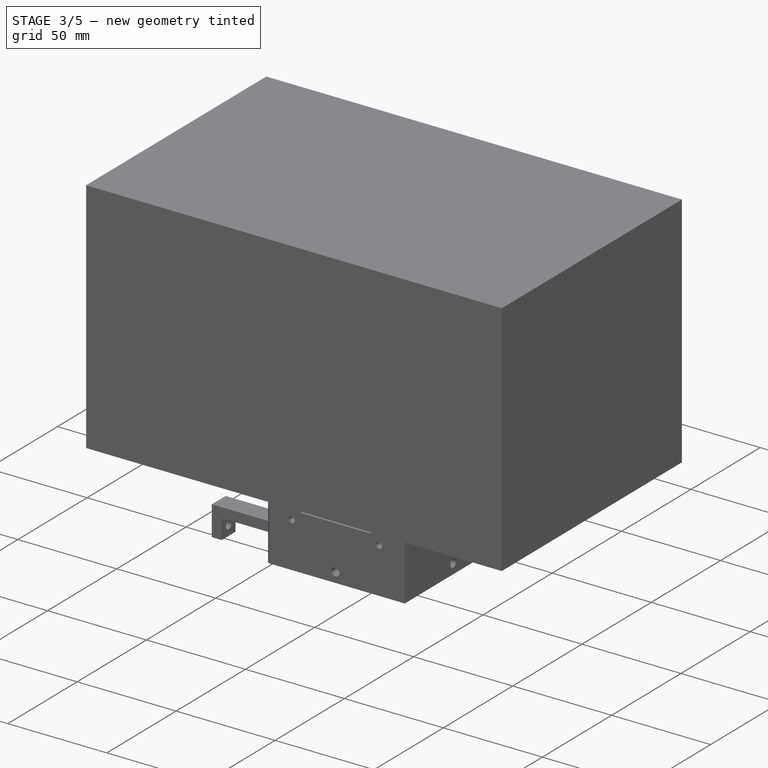
[diagram: stage 3 of 5 — iso view after this stage's code; geometry added in this stage tinted green]
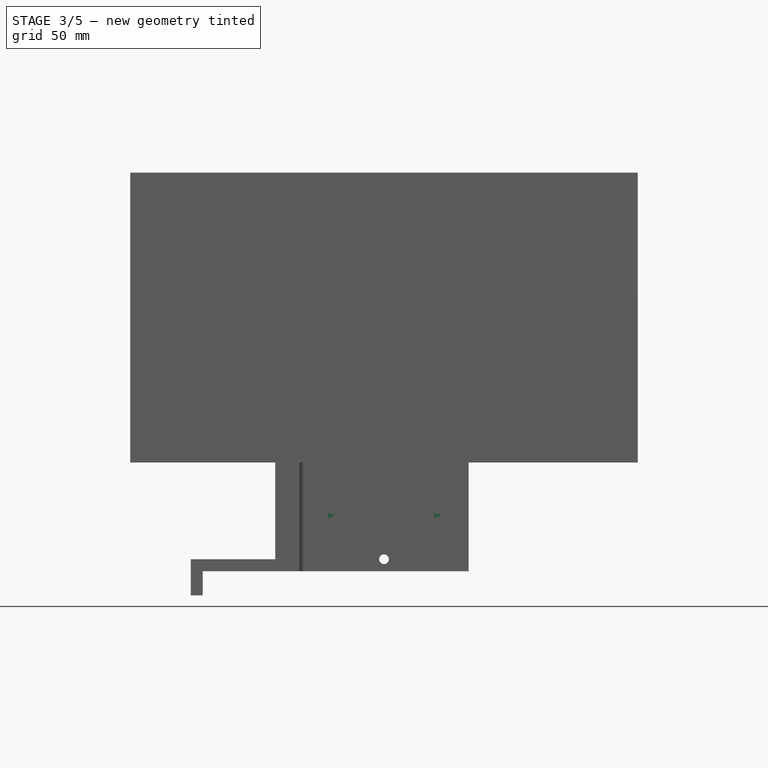
[diagram: stage 3 of 5 — front view after this stage's code; geometry added in this stage tinted green]
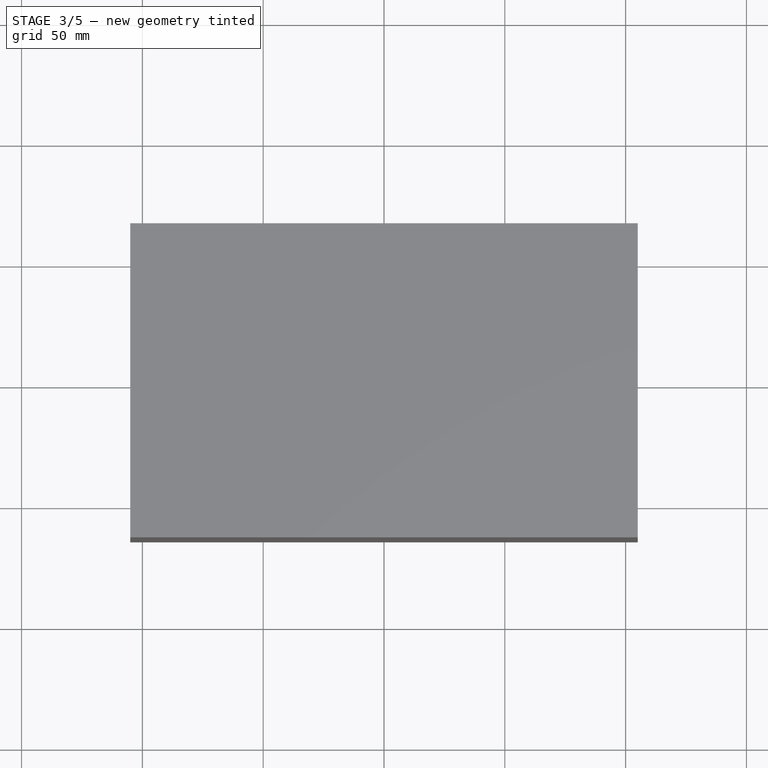
[diagram: stage 3 of 5 — top view after this stage's code; geometry added in this stage tinted green]
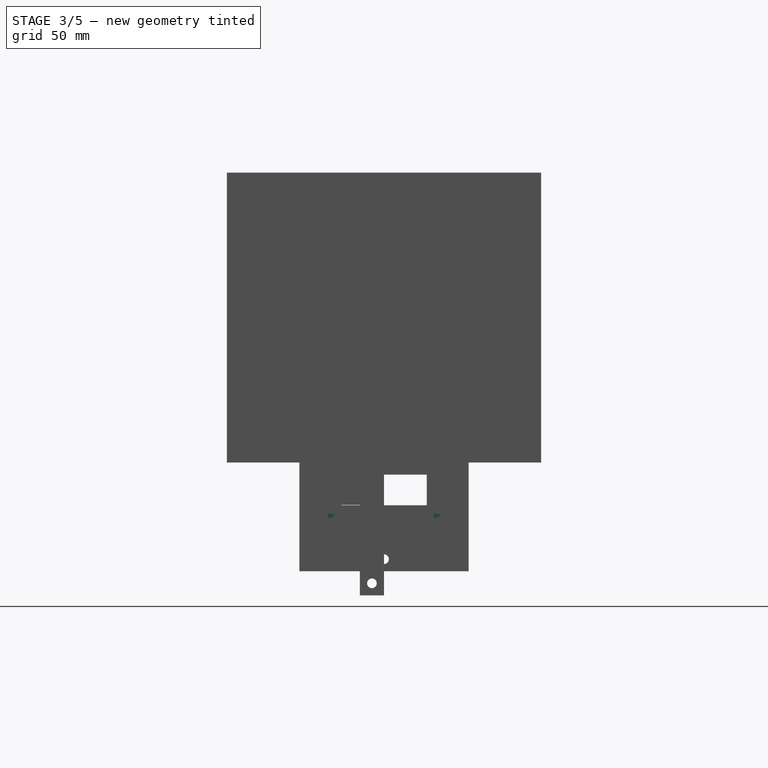
[diagram: stage 3 of 5 — right view after this stage's code; geometry added in this stage tinted green]
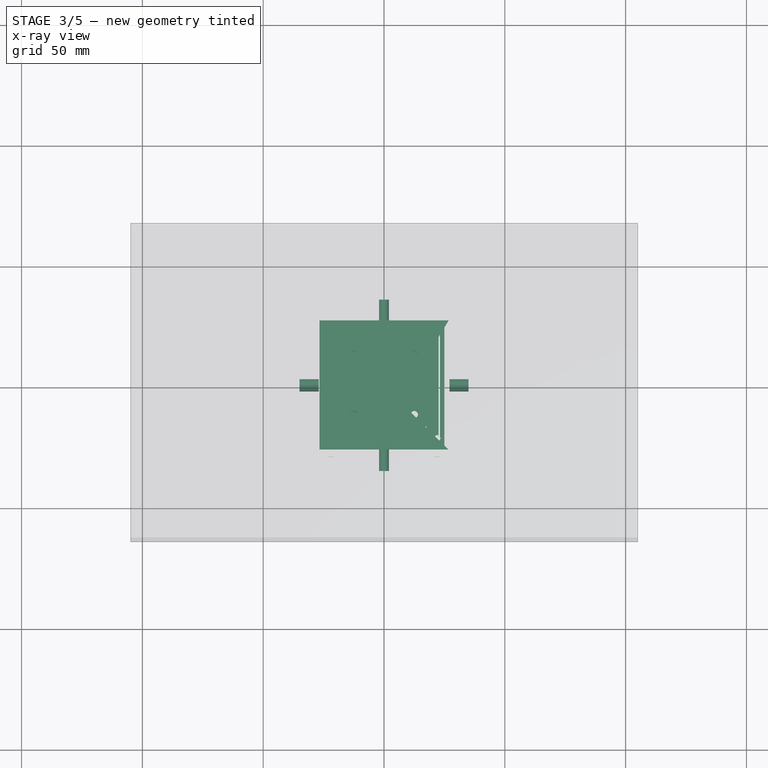
[diagram: stage 3 of 5 — x-ray composite at the top view; earlier geometry ghosted, this stage's added geometry solid]
FEATURE [PartDesign::Body] Body  label="SOPORTE_LED_3DIODOS"
  Group = -> [Sketch138,Pad,Sketch139,Pad047,Sketch140,Pocket081,Sketch141,Pocket082,Sketch142,Pocket083,Sketch143,Pocket084,Sketch144,Pocket085,PolarPattern038]
  Origin = -> Origin
  Placement = pos=(0,-209,0) rot=(0,0,1;0rad)
  Tip = -> PolarPattern038
FEATURE [Sketcher::SketchObject] Sketch146
  FullyConstrained = true
  MapMode = 5
  Support = -> [XY_Plane026]
  sketch-geometry (5):
    g0: LineSegment StartX=-17.5 StartY=-17.5 StartZ=0 EndX=-17.5 EndY=17.5 EndZ=0
    g1: LineSegment StartX=-17.5 StartY=17.5 StartZ=0 EndX=17.5 EndY=17.5 EndZ=0
    g2: LineSegment StartX=17.5 StartY=17.5 StartZ=0 EndX=17.5 EndY=-17.5 EndZ=0
    g3: LineSegment StartX=17.5 StartY=-17.5 StartZ=0 EndX=-17.5 EndY=-17.5 EndZ=0
    g4: GeomPoint X=0 Y=0 Z=0
  constraints (12):
    c: Coincident(g0,g1)
    c: Coincident(g1,g2)
    c: Coincident(g2,g3)
    c: Coincident(g3,g0)
    c: Horizontal(g1)
    c: Horizontal(g3)
    c: Vertical(g0)
    c: Vertical(g2)
    c: Symmetric(g1,g0,g4)
    c: Coincident(g4,g-1)
    c: DistanceX(g1,g1) = 35
    c: DistanceY(g2,g2) = 35
FEATURE [PartDesign::Pad] Pad048  label="Base006"
  Direction = (0,0,1)
  Length = 25
  Length2 = 10
  Profile = -> Sketch146
  ReferenceAxis = -> Sketch146 [N_Axis]
  Type = 0
FEATURE [Sketcher::SketchObject] Sketch149
  FullyConstrained = true
  MapMode = 5
  Placement = pos=(0,0,0) rot=(1,0,0;3.14159rad)
  sketch-geometry (5):
    g0: LineSegment StartX=-25 StartY=-25 StartZ=0 EndX=-25 EndY=25 EndZ=0
    g1: LineSegment StartX=-25 StartY=25 StartZ=0 EndX=25 EndY=25 EndZ=0
    g2: LineSegment StartX=25 StartY=25 StartZ=0 EndX=25 EndY=-25 EndZ=0
    g3: LineSegment StartX=25 StartY=-25 StartZ=0 EndX=-25 EndY=-25 EndZ=0
    g4: GeomPoint X=0 Y=0 Z=0
  constraints (12):
    c: Coincident(g0,g1)
    c: Coincident(g1,g2)
    c: Coincident(g2,g3)
    c: Coincident(g3,g0)
    c: Horizontal(g1)
    c: Horizontal(g3)
    c: Vertical(g0)
    c: Vertical(g2)
    c: Symmetric(g1,g0,g4)
    c: Coincident(g4,g-1)
    c: DistanceY(g2,g2) = 50
    c: DistanceX(g1,g1) = 50
FEATURE [PartDesign::Pad] Pad049  label="Pestaña exterior001"
  BaseFeature = -> Pad048
  Direction = (0,0,-1)
  Length = 2
  Length2 = 10
  Profile = -> Sketch149
  ReferenceAxis = -> Sketch149 [N_Axis]
  Reversed = true
  Type = 0
FEATURE [Sketcher::SketchObject] Sketch151
  FullyConstrained = true
  MapMode = 5
  Placement = pos=(0,0,2) rot=(0,0,1;0rad)
  sketch-geometry (1):
    g0: Circle CenterX=-22 CenterY=22 CenterZ=0 NormalX=0 NormalY=0 NormalZ=1 AngleXU=0 Radius=1.3
  constraints (3):
    c: Diameter(g0) = 2.6
    c: DistanceX(g0,g-1) = 22
    c: DistanceY(g-1,g0) = 22
FEATURE [PartDesign::Pocket] Pocket090  label="Hueco tornillo sujeccion001"
  BaseFeature = -> Pad049
  Direction = (0,0,-1)
  Length = 5
  Length2 = 5
  Profile = -> Sketch151
  ReferenceAxis = -> Sketch151 [N_Axis]
  Type = 1
FEATURE [PartDesign::PolarPattern] PolarPattern039  label="Patron polar hueco tornillo sujeccion"
  Angle = 360
  Axis = -> Sketch151 [N_Axis]
  BaseFeature = -> Pocket090
  Occurrences = 4
  Originals = -> [Pocket090]
FEATURE [Sketcher::SketchObject] Sketch152
  FullyConstrained = true
  MapMode = 5
  Placement = pos=(0,0,25) rot=(0,0,1;0rad)
  Support = -> [PolarPattern039]
  sketch-geometry (1):
    g0: Circle CenterX=-12.5 CenterY=12.5 CenterZ=0 NormalX=0 NormalY=0 NormalZ=1 AngleXU=0 Radius=1.5
  constraints (3):
    c: DistanceX(g0,g-1) = 12.5
    c: DistanceY(g-1,g0) = 12.5
    c: Diameter(g0) = 3
FEATURE [PartDesign::Pocket] Pocket091  label="Hueco insertos fijacion tapa"
  BaseFeature = -> PolarPattern039
  Direction = (0,0,-1)
  Length = 8
  Length2 = 5
  Profile = -> Sketch152
  ReferenceAxis = -> Sketch152 [N_Axis]
  Type = 0
FEATURE [PartDesign::PolarPattern] PolarPattern040  label="Patron polar hueco insertos fijacion tapa"
  Angle = 360
  Axis = -> Z_Axis026
  BaseFeature = -> Pocket091
  Occurrences = 4
  Originals = -> [Pocket091]
FEATURE [PartDesign::Body] Body026  label="SOPORTE_ESPEJO"
  Group = -> [Sketch146,Pad048,Sketch149,Pad049,Sketch151,Pocket090,PolarPattern039,Sketch152,Pocket091,PolarPattern040,Sketch153,Pocket092,Sketch154,Pocket093]
  Origin = -> Origin026
  Placement = pos=(113,10,30) rot=(0.57735,-0.57735,0.57735;4.18879rad)
  Tip = -> Pocket093
FEATURE [Sketcher::SketchObject] Sketch155
  FullyConstrained = true
  MapMode = 5
  Support = -> [XY_Plane027]
  sketch-geometry (5):
    g0: LineSegment StartX=-26.8 StartY=-26.8 StartZ=0 EndX=-26.8 EndY=26.8 EndZ=0
    g1: LineSegment StartX=-26.8 StartY=26.8 StartZ=0 EndX=26.8 EndY=26.8 EndZ=0
    g2: LineSegment StartX=26.8 StartY=26.8 StartZ=0 EndX=26.8 EndY=-26.8 EndZ=0
    g3: LineSegment StartX=26.8 StartY=-26.8 StartZ=0 EndX=-26.8 EndY=-26.8 EndZ=0
    g4: GeomPoint X=0 Y=0 Z=0
  constraints (12):
    c: Coincident(g0,g1)
    c: Coincident(g1,g2)
    c: Coincident(g2,g3)
    c: Coincident(g3,g0)
    c: Horizontal(g1)
    c: Horizontal(g3)
    c: Vertical(g0)
    c: Vertical(g2)
    c: Symmetric(g1,g0,g4)
    c: Coincident(g4,g-1)
    c: Equal(g2,g1)
    c: DistanceY(g2,g2) = 53.6
FEATURE [PartDesign::Pad] Pad050  label="Base007"
  Direction = (0,0,1)
  Length = 10
  Length2 = 10
  Midplane = true
  Profile = -> Sketch155
  ReferenceAxis = -> Sketch155 [N_Axis]
  Type = 0
FEATURE [Sketcher::SketchObject] Sketch157
  FullyConstrained = true
  MapMode = 5
  Placement = pos=(0,0,5) rot=(0,0,1;0rad)
  sketch-geometry (5):
    g0: LineSegment StartX=-6.5 StartY=-6.7 StartZ=0 EndX=-6.5 EndY=6.7 EndZ=0
    g1: LineSegment StartX=-6.5 StartY=6.7 StartZ=0 EndX=6.5 EndY=6.7 EndZ=0
    g2: LineSegment StartX=6.5 StartY=6.7 StartZ=0 EndX=6.5 EndY=-6.7 EndZ=0
    g3: LineSegment StartX=6.5 StartY=-6.7 StartZ=0 EndX=-6.5 EndY=-6.7 EndZ=0
    g4: GeomPoint X=0 Y=0 Z=0
  constraints (12):
    c: Coincident(g0,g1)
    c: Coincident(g1,g2)
    c: Coincident(g2,g3)
    c: Coincident(g3,g0)
    c: Horizontal(g1)
    c: Horizontal(g3)
    c: Vertical(g0)
    c: Vertical(g2)
    c: Symmetric(g1,g0,g4)
    c: Coincident(g4,g-1)
    c: DistanceY(g2,g2) = 13.4
    c: DistanceX(g1,g1) = 13
FEATURE [PartDesign::Pocket] Pocket095  label="Hueco_probeta001"
  BaseFeature = -> Pad050
  Direction = (0,0,-1)
  Length = 5
  Length2 = 5
  Profile = -> Sketch157
  ReferenceAxis = -> Sketch157 [N_Axis]
  Type = 0
FEATURE [PartDesign::PolarPattern] PolarPattern044  label="Patron polar hueco componentes002"
  Angle = 360
  Axis = -> Z_Axis029
  BaseFeature = -> Pocket100
  Occurrences = 4
  Originals = -> [Pocket100]
FEATURE [Sketcher::SketchObject] Sketch165
  ExternalGeometry = -> [PolarPattern044]
  FullyConstrained = true
  MapMode = 5
  Placement = pos=(0,35,0) rot=(0,0.707107,0.707107;3.14159rad)
  Support = -> [PolarPattern044]
  sketch-geometry (3):
    g0: GeomPoint X=0 Y=1e-16 Z=0
    g1: Circle CenterX=0 CenterY=30 CenterZ=0 NormalX=0 NormalY=0 NormalZ=1 AngleXU=0 Radius=2
    g2: Circle CenterX=0 CenterY=-30 CenterZ=0 NormalX=0 NormalY=0 NormalZ=1 AngleXU=0 Radius=2
  constraints (7):
    c: Coincident(g0,g-1)
    c: PointOnObject(g1,g-2)
    c: DistanceY(g1,g-3) = 5
    c: PointOnObject(g2,g-2)
    c: DistanceY(g-4,g2) = 5
    c: Equal(g1,g2)
    c: Diameter(g1) = 4
FEATURE [PartDesign::Pocket] Pocket101  label="Hueco tornillo tapas002"
  BaseFeature = -> PolarPattern044
  Direction = (0,-1,2e-16)
  Length = 10
  Length2 = 5
  Profile = -> Sketch165
  ReferenceAxis = -> Sketch165 [N_Axis]
  Type = 0
FEATURE [PartDesign::PolarPattern] PolarPattern045  label="Patron polar hueco tornillo tapas002"
  Angle = 360
  Axis = -> Z_Axis029
  BaseFeature = -> Pocket101
  Occurrences = 4
  Originals = -> [Pocket101]
FEATURE [Sketcher::SketchObject] Sketch166
  FullyConstrained = true
  MapMode = 5
  Placement = pos=(0,35,0) rot=(0,0.707107,0.707107;3.14159rad)
  Support = -> [PolarPattern045]
  sketch-geometry (4):
    g0: Circle CenterX=-22 CenterY=22 CenterZ=0 NormalX=0 NormalY=0 NormalZ=1 AngleXU=0 Radius=1.5
    g1: Circle CenterX=22 CenterY=22 CenterZ=0 NormalX=0 NormalY=0 NormalZ=1 AngleXU=0 Radius=1.5
    g2: Circle CenterX=-22 CenterY=-22 CenterZ=0 NormalX=0 NormalY=0 NormalZ=1 AngleXU=0 Radius=1.5
    g3: Circle CenterX=22 CenterY=-22 CenterZ=0 NormalX=0 NormalY=0 NormalZ=1 AngleXU=0 Radius=1.5
  constraints (12):
    c: Equal(g1,g0)
    c: Equal(g1,g2)
    c: Equal(g1,g3)
    c: Diameter(g1) = 3
    c: DistanceX(g2,g0) = 0
    c: DistanceY(g0,g1) = 0
    c: DistanceY(g3,g2) = 0
    c: DistanceX(g3,g1) = 0
    c: DistanceY(g-1,g0) = 22
    c: DistanceX(g0,g-1) = 22
    c: DistanceX(g-1,g3) = 22
    c: DistanceY(g3,g-1) = 22
FEATURE [PartDesign::Pocket] Pocket102  label="Hueco insertos pestaña exterior componentes002"
  BaseFeature = -> PolarPattern045
  Direction = (0,-1,2e-16)
  Length = 5
  Length2 = 5
  Profile = -> Sketch166
  ReferenceAxis = -> Sketch166 [N_Axis]
  Type = 0
FEATURE [PartDesign::PolarPattern] PolarPattern046  label="Patron polar hueco insertos pestaña exterior002"
  Angle = 360
  Axis = -> Z_Axis029
  BaseFeature = -> Pocket102
  Occurrences = 4
  Originals = -> [Pocket102]
FEATURE [Sketcher::SketchObject] Sketch167
  ExternalGeometry = -> [PolarPattern046]
  FullyConstrained = true
  MapMode = 5
  Placement = pos=(-35,0,0) rot=(0.57735,-0.57735,-0.57735;2.0944rad)
  Support = -> [PolarPattern046]
  sketch-geometry (5):
    g0: GeomPoint X=0 Y=0 Z=0
    g1: Circle CenterX=-30 CenterY=30 CenterZ=0 NormalX=0 NormalY=0 NormalZ=1 AngleXU=0 Radius=2
    g2: Circle CenterX=-30 CenterY=-30 CenterZ=0 NormalX=0 NormalY=0 NormalZ=1 AngleXU=0 Radius=2
    g3: Circle CenterX=30 CenterY=-30 CenterZ=0 NormalX=0 NormalY=0 NormalZ=1 AngleXU=0 Radius=2
    g4: Circle CenterX=30 CenterY=30 CenterZ=0 NormalX=0 NormalY=0 NormalZ=1 AngleXU=0 Radius=2
  constraints (13):
    c: Coincident(g0,g-1)
    c: Equal(g2,g3)
    c: Equal(g2,g4)
    c: Equal(g2,g1)
    c: Diameter(g2) = 4
    c: DistanceX(g2,g1) = 0
    c: DistanceY(g3,g2) = 0
    c: DistanceX(g4,g3) = 0
    c: DistanceY(g1,g4) = 0
    c: DistanceX(g1,g0) = 30
    c: DistanceY(g0,g1) = 30
    c: DistanceX(g0,g3) = 30
    c: DistanceY(g3,g0) = 30
FEATURE [PartDesign::Pocket] Pocket103  label="Hueco insertos pata apoyo002"
  BaseFeature = -> PolarPattern046
  Direction = (1,0,0)
  Length = 5
  Length2 = 5
  Profile = -> Sketch167
  ReferenceAxis = -> Sketch167 [N_Axis]
  Type = 0
FEATURE [PartDesign::Fillet] Fillet004
  Base = -> Pocket103 [Edge4,Edge1,Edge19,Edge44]
  BaseFeature = -> Pocket103
  Radius = 2
  SupportTransform = false
  UseAllEdges = false
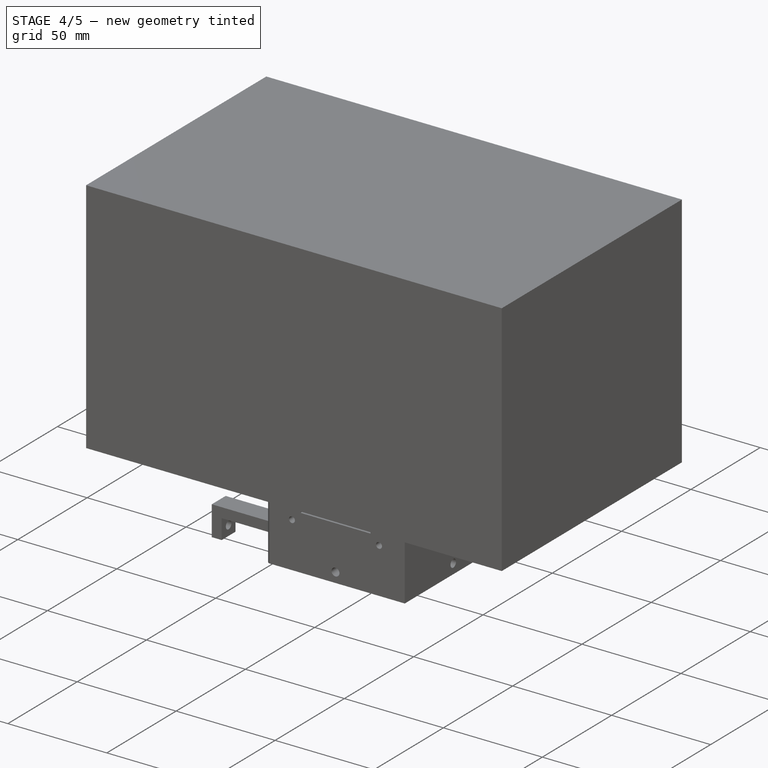
[diagram: stage 4 of 5 — iso view after this stage's code; geometry added in this stage tinted green]
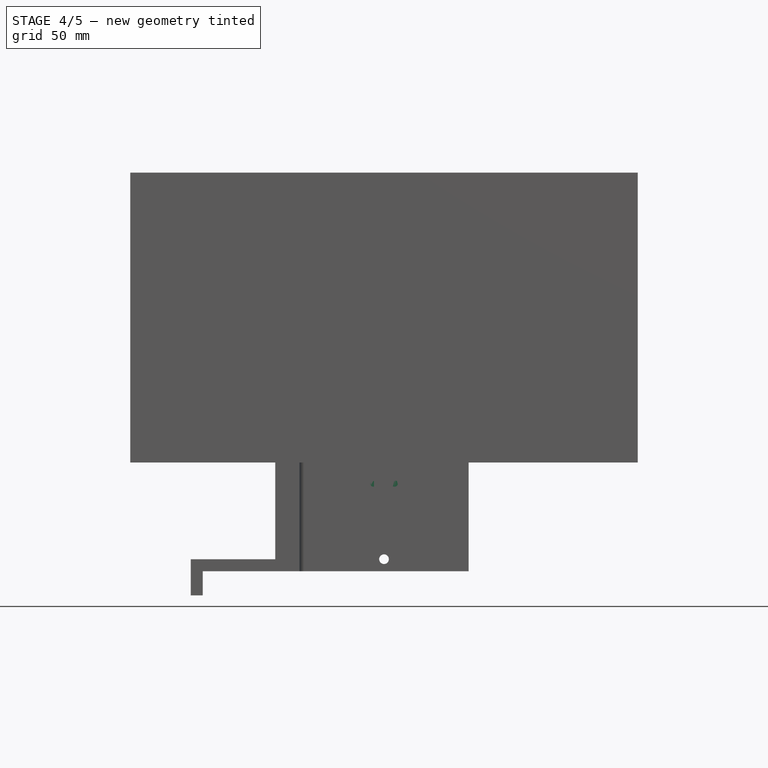
[diagram: stage 4 of 5 — front view after this stage's code; geometry added in this stage tinted green]
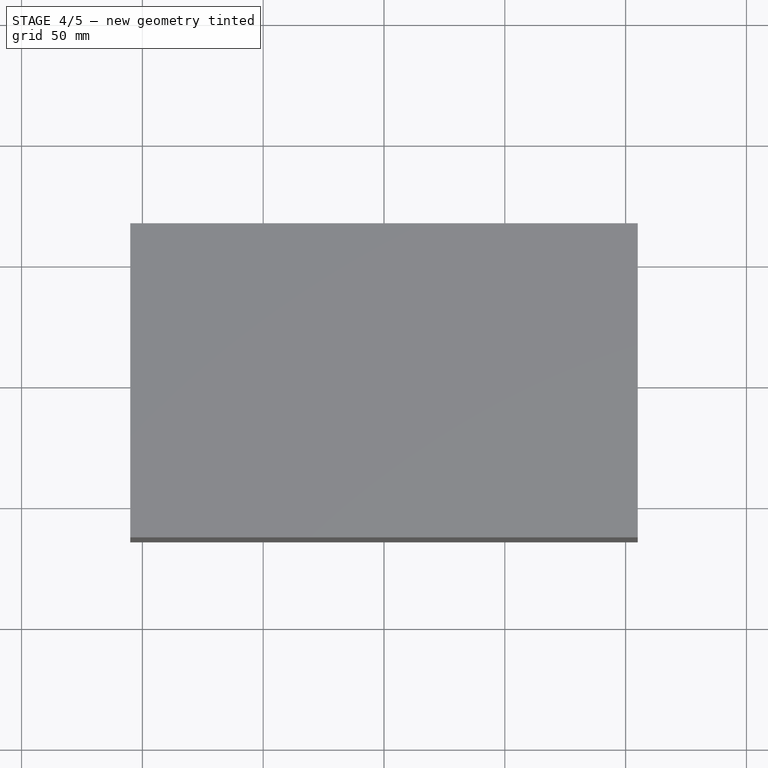
[diagram: stage 4 of 5 — top view after this stage's code; geometry added in this stage tinted green]
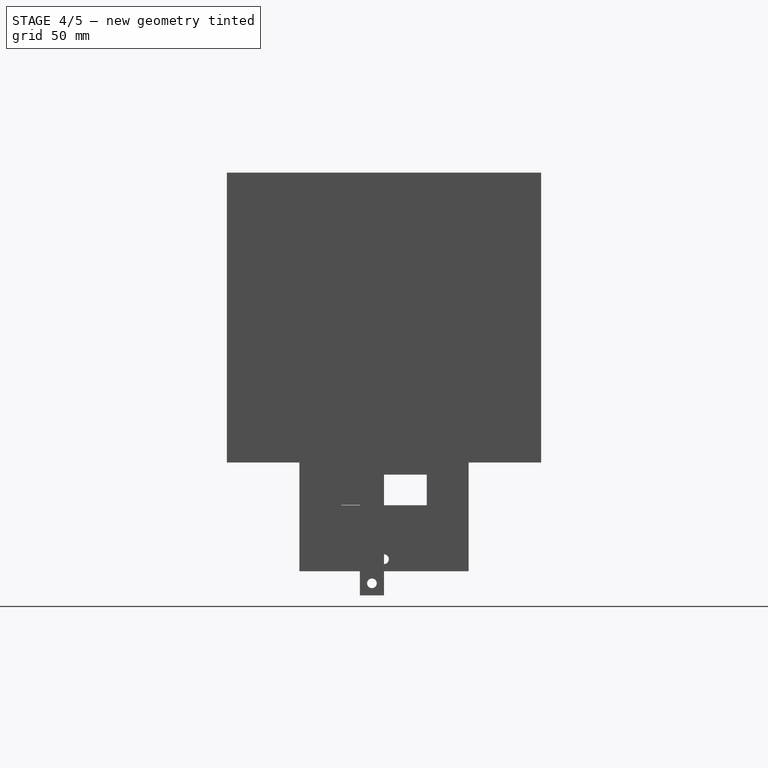
[diagram: stage 4 of 5 — right view after this stage's code; geometry added in this stage tinted green]
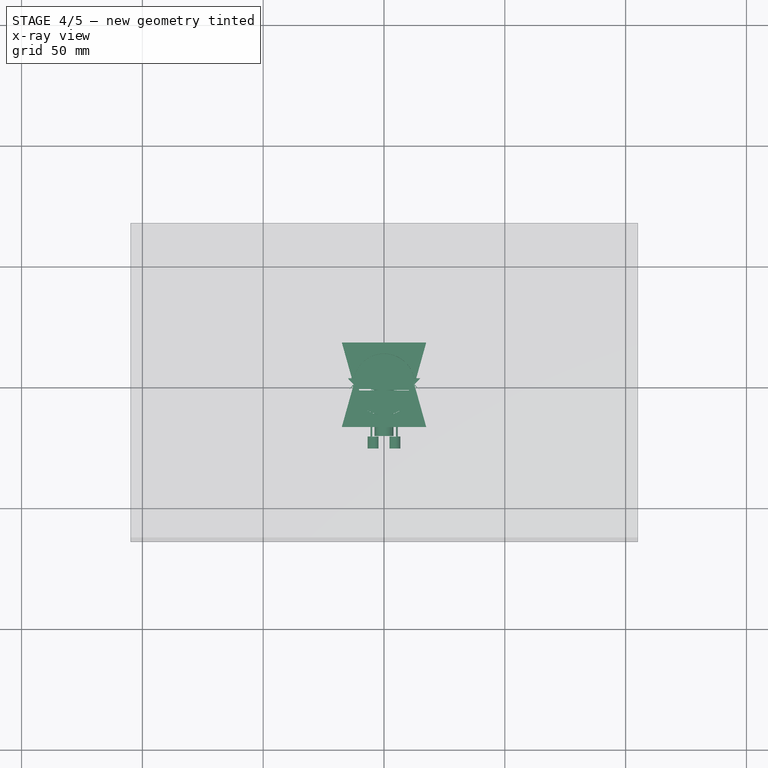
[diagram: stage 4 of 5 — x-ray composite at the top view; earlier geometry ghosted, this stage's added geometry solid]
FEATURE [Sketcher::SketchObject] Sketch013
  FullyConstrained = true
  MapMode = 5
  Support = -> [XY_Plane004]
  sketch-geometry (5):
    g0: LineSegment StartX=-17.5 StartY=-17.5 StartZ=0 EndX=-17.5 EndY=17.5 EndZ=0
    g1: LineSegment StartX=-17.5 StartY=17.5 StartZ=0 EndX=17.5 EndY=17.5 EndZ=0
    g2: LineSegment StartX=17.5 StartY=17.5 StartZ=0 EndX=17.5 EndY=-17.5 EndZ=0
    g3: LineSegment StartX=17.5 StartY=-17.5 StartZ=0 EndX=-17.5 EndY=-17.5 EndZ=0
    g4: GeomPoint X=0 Y=0 Z=0
  constraints (12):
    c: Coincident(g0,g1)
    c: Coincident(g1,g2)
    c: Coincident(g2,g3)
    c: Coincident(g3,g0)
    c: Horizontal(g1)
    c: Horizontal(g3)
    c: Vertical(g0)
    c: Vertical(g2)
    c: Symmetric(g1,g0,g4)
    c: Coincident(g4,g-1)
    c: DistanceX(g1,g1) = 35
    c: DistanceY(g2,g2) = 35
FEATURE [PartDesign::Pad] Pad008  label="Base001"
  Direction = (0,0,1)
  Length = 13
  Length2 = 10
  Profile = -> Sketch013
  ReferenceAxis = -> Sketch013 [N_Axis]
  Type = 0
FEATURE [Sketcher::SketchObject] Sketch014
  FullyConstrained = true
  MapMode = 5
  Placement = pos=(0,0,13) rot=(0,0,1;0rad)
  Support = -> [Pad008]
  sketch-geometry (1):
    g0: Circle CenterX=0 CenterY=0 CenterZ=0 NormalX=0 NormalY=0 NormalZ=1 AngleXU=0 Radius=10.5
  constraints (2):
    c: Coincident(g0,g-1)
    c: Diameter(g0) = 21
FEATURE [PartDesign::Pocket] Pocket004  label="Hueco intermedio"
  BaseFeature = -> Pad008
  Direction = (0,0,-1)
  Length = 8
  Length2 = 5
  Profile = -> Sketch014
  ReferenceAxis = -> Sketch014 [N_Axis]
  Type = 0
FEATURE [Sketcher::SketchObject] Sketch015
  FullyConstrained = true
  MapMode = 5
  Placement = pos=(0,0,13) rot=(0,0,1;0rad)
  Support = -> [Pocket004]
  sketch-geometry (1):
    g0: Circle CenterX=0 CenterY=0 CenterZ=0 NormalX=0 NormalY=0 NormalZ=1 AngleXU=0 Radius=12.6
  constraints (2):
    c: Coincident(g0,g-1)
    c: Diameter(g0) = 25.2
FEATURE [PartDesign::Pocket] Pocket005  label="Hueco filtro"
  BaseFeature = -> Pocket004
  Direction = (0,0,-1)
  Length = 5
  Length2 = 5
  Profile = -> Sketch015
  ReferenceAxis = -> Sketch015 [N_Axis]
  Type = 0
FEATURE [Sketcher::SketchObject] Sketch021
  FullyConstrained = true
  MapMode = 5
  Placement = pos=(0,0,0) rot=(1,0,0;3.14159rad)
  sketch-geometry (5):
    g0: LineSegment StartX=-25 StartY=-25 StartZ=0 EndX=-25 EndY=25 EndZ=0
    g1: LineSegment StartX=-25 StartY=25 StartZ=0 EndX=25 EndY=25 EndZ=0
    g2: LineSegment StartX=25 StartY=25 StartZ=0 EndX=25 EndY=-25 EndZ=0
    g3: LineSegment StartX=25 StartY=-25 StartZ=0 EndX=-25 EndY=-25 EndZ=0
    g4: GeomPoint X=0 Y=0 Z=0
  constraints (12):
    c: Coincident(g0,g1)
    c: Coincident(g1,g2)
    c: Coincident(g2,g3)
    c: Coincident(g3,g0)
    c: Horizontal(g1)
    c: Horizontal(g3)
    c: Vertical(g0)
    c: Vertical(g2)
    c: Symmetric(g1,g0,g4)
    c: Coincident(g4,g-1)
    c: DistanceY(g2,g2) = 50
    c: DistanceX(g1,g1) = 50
FEATURE [PartDesign::Pad] Pad010  label="Pestaña exterior"
  BaseFeature = -> Pocket005
  Direction = (0,0,-1)
  Length = 2
  Length2 = 10
  Profile = -> Sketch021
  ReferenceAxis = -> Sketch021 [N_Axis]
  Reversed = true
  Type = 0
FEATURE [Sketcher::SketchObject] Sketch023
  FullyConstrained = true
  MapMode = 5
  Placement = pos=(0,0,5) rot=(0,0,1;0rad)
  Support = -> [Pad010]
  sketch-geometry (1):
    g0: Circle CenterX=0 CenterY=0 CenterZ=0 NormalX=0 NormalY=0 NormalZ=1 AngleXU=0 Radius=4.3
  constraints (2):
    c: Coincident(g0,g-1)
    c: Diameter(g0) = 8.6
FEATURE [PartDesign::Pocket] Pocket008  label="Hueco detector"
  BaseFeature = -> Pad010
  Direction = (0,0,-1)
  Length = 5
  Length2 = 5
  Profile = -> Sketch023
  ReferenceAxis = -> Sketch023 [N_Axis]
  Type = 1
FEATURE [Sketcher::SketchObject] Sketch024
  ExternalGeometry = -> [Pocket008]
  FullyConstrained = true
  MapMode = 5
  Placement = pos=(0,0,2) rot=(0,0,1;0rad)
  Support = -> [Pocket008]
  sketch-geometry (1):
    g0: Circle CenterX=-22 CenterY=22 CenterZ=0 NormalX=0 NormalY=0 NormalZ=1 AngleXU=0 Radius=1.2
  constraints (3):
    c: Diameter(g0) = 2.4
    c: DistanceX(g0,g-1) = 22
    c: DistanceY(g-1,g0) = 22
FEATURE [PartDesign::Pocket] Pocket009  label="Hueco tornillo sujeccion"
  BaseFeature = -> Pocket008
  Direction = (0,0,-1)
  Length = 5
  Length2 = 5
  Profile = -> Sketch024
  ReferenceAxis = -> Sketch024 [N_Axis]
  Type = 1
FEATURE [PartDesign::Body] Body004  label="SOPORTE_DETECTOR_D25"
  Group = -> [Sketch013,Pad008,Sketch014,Pocket004,Sketch015,Pocket005,Sketch021,Pad010,Sketch023,Pocket008,Sketch024,Pocket009,PolarPattern002,Sketch025,Pocket010,PolarPattern003,Sketch058,Pocket030,Sketch,Pocket]
  Origin = -> Origin004
  Placement = pos=(0,140,30) rot=(-1,0,0;1.5708rad)
  Tip = -> Pocket
FEATURE [Sketcher::SketchObject] Sketch138
  FullyConstrained = true
  MapMode = 5
  Placement = pos=(0,0,0) rot=(1,0,0;1.5708rad)
  Support = -> [XZ_Plane]
  sketch-geometry (5):
    g0: LineSegment StartX=-25 StartY=-25 StartZ=0 EndX=-25 EndY=25 EndZ=0
    g1: LineSegment StartX=-25 StartY=25 StartZ=0 EndX=25 EndY=25 EndZ=0
    g2: LineSegment StartX=25 StartY=25 StartZ=0 EndX=25 EndY=-25 EndZ=0
    g3: LineSegment StartX=25 StartY=-25 StartZ=0 EndX=-25 EndY=-25 EndZ=0
    g4: GeomPoint X=-1e-16 Y=1e-16 Z=0
  constraints (12):
    c: Coincident(g0,g1)
    c: Coincident(g1,g2)
    c: Coincident(g2,g3)
    c: Coincident(g3,g0)
    c: Horizontal(g1)
    c: Horizontal(g3)
    c: Vertical(g0)
    c: Vertical(g2)
    c: Symmetric(g1,g0,g4)
    c: Coincident(g4,g-1)
    c: Equal(g1,g2)
    c: DistanceY(g2,g2) = 50
FEATURE [PartDesign::Pad] Pad  label="Base exterior"
  Direction = (0,-1,-2e-16)
  Length = 2
  Length2 = 10
  Placement = pos=(0,0,0) rot=(1,0,0;1.5708rad)
  Profile = -> Sketch138
  ReferenceAxis = -> Sketch138 [N_Axis]
  Type = 0
FEATURE [Sketcher::SketchObject] Sketch139
  FullyConstrained = true
  MapMode = 5
  Placement = pos=(0,-2,0) rot=(1,0,0;1.5708rad)
  Support = -> [Pad]
  sketch-geometry (5):
    g0: LineSegment StartX=-17.5 StartY=-17.5 StartZ=0 EndX=-17.5 EndY=17.5 EndZ=0
    g1: LineSegment StartX=-17.5 StartY=17.5 StartZ=0 EndX=17.5 EndY=17.5 EndZ=0
    g2: LineSegment StartX=17.5 StartY=17.5 StartZ=0 EndX=17.5 EndY=-17.5 EndZ=0
    g3: LineSegment StartX=17.5 StartY=-17.5 StartZ=0 EndX=-17.5 EndY=-17.5 EndZ=0
    g4: GeomPoint X=0 Y=0 Z=0
  constraints (12):
    c: Coincident(g0,g1)
    c: Coincident(g1,g2)
    c: Coincident(g2,g3)
    c: Coincident(g3,g0)
    c: Horizontal(g1)
    c: Horizontal(g3)
    c: Vertical(g0)
    c: Vertical(g2)
    c: Symmetric(g1,g0,g4)
    c: Coincident(g4,g-1)
    c: Equal(g2,g1)
    c: DistanceY(g2,g2) = 35
FEATURE [PartDesign::Pad] Pad047  label="Base interior"
  BaseFeature = -> Pad
  Direction = (0,-1,-2e-16)
  Length = 24
  Length2 = 10
  Placement = pos=(0,0,0) rot=(1,0,0;1.5708rad)
  Profile = -> Sketch139
  ReferenceAxis = -> Sketch139 [N_Axis]
  Type = 0
FEATURE [Sketcher::SketchObject] Sketch140
  FullyConstrained = true
  MapMode = 5
  Placement = pos=(0,-26,-2e-16) rot=(1,0,0;1.5708rad)
  Support = -> [Pad047]
  sketch-geometry (7):
    g0: LineSegment StartX=5.8 StartY=10.0459 StartZ=0 EndX=-5.8 EndY=10.0459 EndZ=0
    g1: LineSegment StartX=-5.8 StartY=10.0459 StartZ=0 EndX=-11.6 EndY=1.8e-15 EndZ=0
    g2: LineSegment StartX=-11.6 StartY=2.2e-15 StartZ=0 EndX=-5.8 EndY=-10.0459 EndZ=0
    g3: LineSegment StartX=-5.8 StartY=-10.0459 StartZ=0 EndX=5.8 EndY=-10.0459 EndZ=0
    g4: LineSegment StartX=5.8 StartY=-10.0459 StartZ=0 EndX=11.6 EndY=-1.8e-15 EndZ=0
    g5: LineSegment StartX=11.6 StartY=-1.8e-15 StartZ=0 EndX=5.8 EndY=10.0459 EndZ=0
    g6: Circle CenterX=0 CenterY=0 CenterZ=0 NormalX=0 NormalY=0 NormalZ=1 AngleXU=0 Radius=11.6
  constraints (16):
    c: Coincident(g0,g1)
    c: Coincident(g1,g2)
    c: Coincident(g2,g3)
    c: Coincident(g3,g4)
    c: Coincident(g4,g5)
    c: Coincident(g5,g0)
    c: Equal(g0, g1-g5) x5
    c: PointOnObject(g0,g6)
    c: PointOnObject(g1,g6)
    c: PointOnObject(g2,g6)
    c: PointOnObject(g3,g6)
    c: PointOnObject(g4,g6)
    c: PointOnObject(g5,g6)
    c: Coincident(g6,g-1)
    c: Horizontal(g0)
    c: DistanceX(g0,g0) = 11.6
FEATURE [PartDesign::Pocket] Pocket081  label="Hueco LED"
  BaseFeature = -> Pad047
  Direction = (0,1,2e-16)
  Length = 5
  Length2 = 5
  Placement = pos=(0,0,0) rot=(1,0,0;1.5708rad)
  Profile = -> Sketch140
  ReferenceAxis = -> Sketch140 [N_Axis]
  Type = 0
FEATURE [Sketcher::SketchObject] Sketch141
  ExternalGeometry = -> [Pocket081]
  FullyConstrained = true
  MapMode = 5
  Placement = pos=(0,-26,-2e-16) rot=(1,0,0;1.5708rad)
  Support = -> [Pocket081]
  sketch-geometry (4):
    g0: Circle CenterX=-4.3 CenterY=8.54589 CenterZ=0 NormalX=0 NormalY=0 NormalZ=1 AngleXU=0 Radius=2.5
    g1: Circle CenterX=4.3 CenterY=8.54589 CenterZ=0 NormalX=0 NormalY=0 NormalZ=1 AngleXU=0 Radius=2.5
    g2: Circle CenterX=-4.3 CenterY=-8.54589 CenterZ=0 NormalX=0 NormalY=0 NormalZ=1 AngleXU=0 Radius=2.5
    g3: Circle CenterX=4.3 CenterY=-8.54589 CenterZ=0 NormalX=0 NormalY=0 NormalZ=1 AngleXU=0 Radius=2.5
  constraints (12):
    c: Equal(g3,g2)
    c: Equal(g3,g0)
    c: Equal(g3,g1)
    c: Diameter(g3) = 5
    c: DistanceX(g-3,g0) = 1.5
    c: DistanceY(g0,g-3) = 1.5
    c: DistanceX(g3,g-4) = 1.5
    c: DistanceY(g-4,g3) = 1.5
    c: DistanceX(g2,g0) = 0
    c: DistanceY(g2,g3) = 0
    c: DistanceY(g0,g1) = 0
    c: DistanceX(g3,g1) = 0
FEATURE [PartDesign::Pocket] Pocket082  label="Rebaje esquinas LED"
  BaseFeature = -> Pocket081
  Direction = (0,1,-2e-16)
  Length = 5
  Length2 = 5
  Placement = pos=(0,0,0) rot=(1,0,0;1.5708rad)
  Profile = -> Sketch141
  ReferenceAxis = -> Sketch141 [N_Axis]
  Type = 0
FEATURE [Sketcher::SketchObject] Sketch142
  ExternalGeometry = -> [Pocket082]
  FullyConstrained = true
  MapMode = 5
  Placement = pos=(0,-21,1.1e-14) rot=(1,0,0;1.5708rad)
  Support = -> [Pocket082]
  sketch-geometry (4):
    g0: Circle CenterX=-4.3 CenterY=8.54589 CenterZ=0 NormalX=0 NormalY=0 NormalZ=1 AngleXU=0 Radius=1.5
    g1: Circle CenterX=4.3 CenterY=8.54589 CenterZ=0 NormalX=0 NormalY=0 NormalZ=1 AngleXU=0 Radius=1.5
    g2: Circle CenterX=-4.3 CenterY=-8.54589 CenterZ=0 NormalX=0 NormalY=0 NormalZ=1 AngleXU=0 Radius=1.5
    g3: Circle CenterX=4.3 CenterY=-8.54589 CenterZ=0 NormalX=0 NormalY=0 NormalZ=1 AngleXU=0 Radius=1.5
  constraints (12):
    c: Equal(g3,g2)
    c: Equal(g3,g0)
    c: Equal(g3,g1)
    c: Diameter(g3) = 3
    c: DistanceY(g0,g1) = 0
    c: DistanceX(g3,g1) = 0
    c: DistanceY(g2,g3) = 0
    c: DistanceX(g2,g0) = 0
    c: DistanceX(g-8,g0) = 1.5
    c: DistanceY(g0,g-8) = 1.5
    c: DistanceX(g3,g-7) = 1.5
    c: DistanceY(g-7,g3) = 1.5
FEATURE [PartDesign::Pocket] Pocket083  label="Hueco insertos fijacion LED"
  BaseFeature = -> Pocket082
  Direction = (0,1,-4e-16)
  Length = 9
  Length2 = 5
  Placement = pos=(0,0,0) rot=(1,0,0;1.5708rad)
  Profile = -> Sketch142
  ReferenceAxis = -> Sketch142 [N_Axis]
  Type = 0
FEATURE [Sketcher::SketchObject] Sketch143
  FullyConstrained = true
  MapMode = 5
  Placement = pos=(0,-21,-2.7e-15) rot=(1,0,0;1.5708rad)
  Support = -> [Pocket083]
  sketch-geometry (1):
    g0: Circle CenterX=0 CenterY=0 CenterZ=0 NormalX=0 NormalY=0 NormalZ=1 AngleXU=0 Radius=4
  constraints (2):
    c: Coincident(g0,g-1)
    c: Diameter(g0) = 8
FEATURE [PartDesign::Pocket] Pocket084  label="Hueco paso cable"
  BaseFeature = -> Pocket083
  Direction = (0,1,-2e-16)
  Length = 5
  Length2 = 5
  Placement = pos=(0,0,0) rot=(1,0,0;1.5708rad)
  Profile = -> Sketch143
  ReferenceAxis = -> Sketch143 [N_Axis]
  Type = 1
FEATURE [Sketcher::SketchObject] Sketch144
  FullyConstrained = true
  MapMode = 5
  Placement = pos=(0,-2,0) rot=(1,0,0;1.5708rad)
  Support = -> [Pocket084]
  sketch-geometry (1):
    g0: Circle CenterX=-22 CenterY=22 CenterZ=0 NormalX=0 NormalY=0 NormalZ=1 AngleXU=0 Radius=1.3
  constraints (3):
    c: DistanceX(g0,g-1) = 22
    c: DistanceY(g-1,g0) = 22
    c: Diameter(g0) = 2.6
FEATURE [PartDesign::Pocket] Pocket085  label="Hueco paso tornillo fijacion"
  BaseFeature = -> Pocket084
  Direction = (0,1,-4e-16)
  Length = 5
  Length2 = 5
  Placement = pos=(0,0,0) rot=(1,0,0;1.5708rad)
  Profile = -> Sketch144
  ReferenceAxis = -> Sketch144 [N_Axis]
  Type = 1
FEATURE [PartDesign::PolarPattern] PolarPattern038  label="PAtron polar hueco tornillos fijacion"
  Angle = 360
  Axis = -> Y_Axis
  BaseFeature = -> Pocket085
  Occurrences = 4
  Originals = -> [Pocket085]
  Placement = pos=(0,0,0) rot=(1,0,0;1.5708rad)
FEATURE [Sketcher::SketchObject] Sketch153
  FullyConstrained = true
  MapMode = 5
  Placement = pos=(0,0,25) rot=(0,0,1;0rad)
  Support = -> [PolarPattern040]
  sketch-geometry (5):
    g0: LineSegment StartX=-15 StartY=-2.5 StartZ=0 EndX=-15 EndY=2.5 EndZ=0
    g1: LineSegment StartX=-15 StartY=2.5 StartZ=0 EndX=15 EndY=2.5 EndZ=0
    g2: LineSegment StartX=15 StartY=2.5 StartZ=0 EndX=15 EndY=-2.5 EndZ=0
    g3: LineSegment StartX=15 StartY=-2.5 StartZ=0 EndX=-15 EndY=-2.5 EndZ=0
    g4: GeomPoint X=0 Y=0 Z=0
  constraints (12):
    c: Coincident(g0,g1)
    c: Coincident(g1,g2)
    c: Coincident(g2,g3)
    c: Coincident(g3,g0)
    c: Horizontal(g1)
    c: Horizontal(g3)
    c: Vertical(g0)
    c: Vertical(g2)
    c: Symmetric(g1,g0,g4)
    c: Coincident(g4,g-1)
    c: DistanceX(g1,g1) = 30
    c: DistanceY(g0,g0) = 5
FEATURE [PartDesign::Pocket] Pocket092  label="Rebaje extraccion espejo"
  BaseFeature = -> PolarPattern040
  Direction = (0,0,-1)
  Length = 3.5
  Length2 = 5
  Profile = -> Sketch153
  ReferenceAxis = -> Sketch153 [N_Axis]
  Type = 0
FEATURE [Sketcher::SketchObject] Sketch154
  FullyConstrained = true
  MapMode = 5
  Placement = pos=(0,0,25) rot=(0,0,1;0rad)
  Support = -> [Pocket092]
  sketch-geometry (1):
    g0: Circle CenterX=0 CenterY=0 CenterZ=0 NormalX=0 NormalY=0 NormalZ=1 AngleXU=0 Radius=12.7
  constraints (2):
    c: Coincident(g0,g-1)
    c: Diameter(g0) = 25.4
FEATURE [PartDesign::Pocket] Pocket093  label="Hueco espejo"
  BaseFeature = -> Pocket092
  Direction = (0,0,-1)
  Length = 3.5
  Length2 = 5
  Profile = -> Sketch154
  ReferenceAxis = -> Sketch154 [N_Axis]
  Type = 0
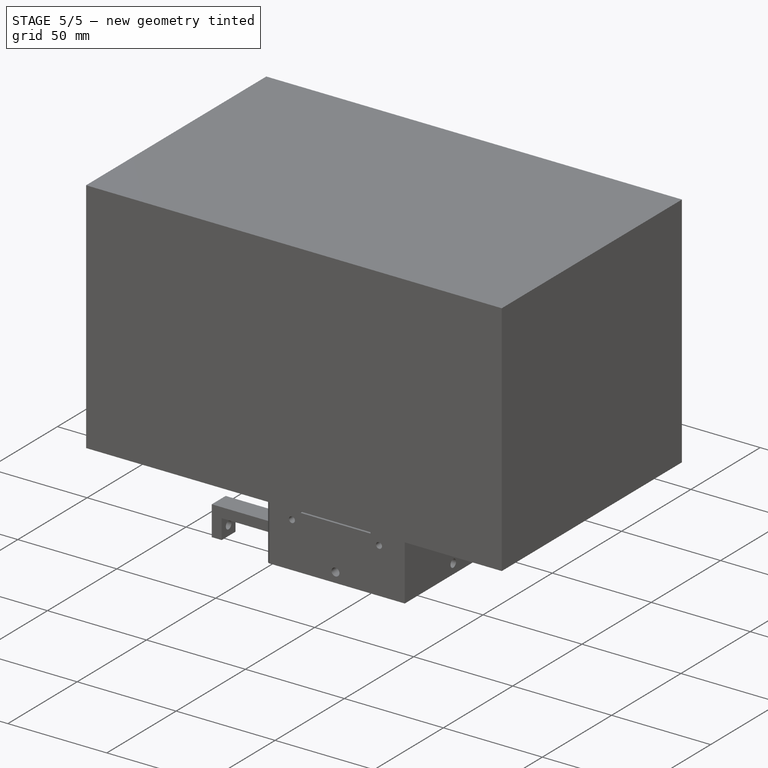
[diagram: stage 5 of 5 — iso view after this stage's code; geometry added in this stage tinted green]
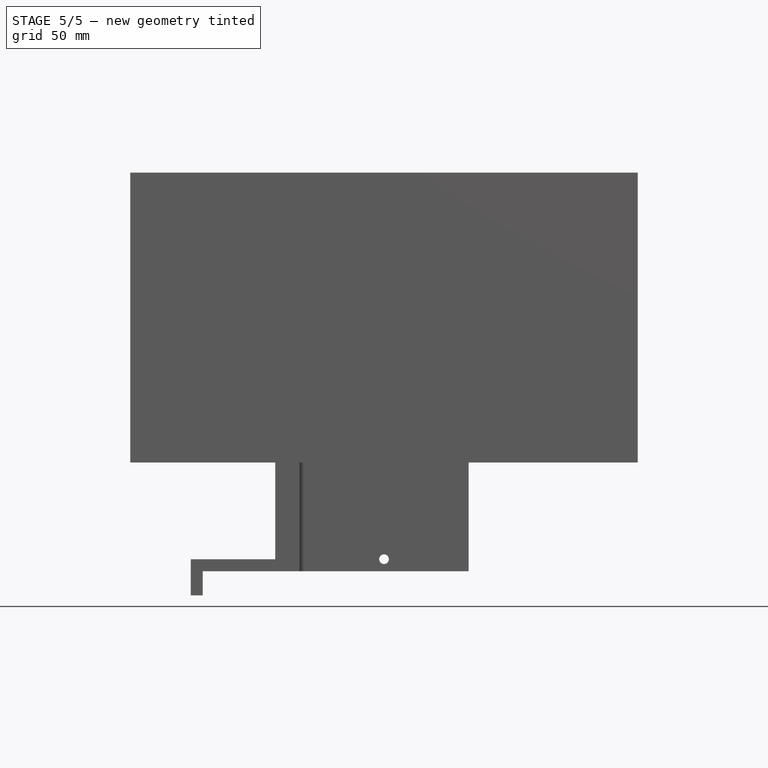
[diagram: stage 5 of 5 — front view after this stage's code; geometry added in this stage tinted green]
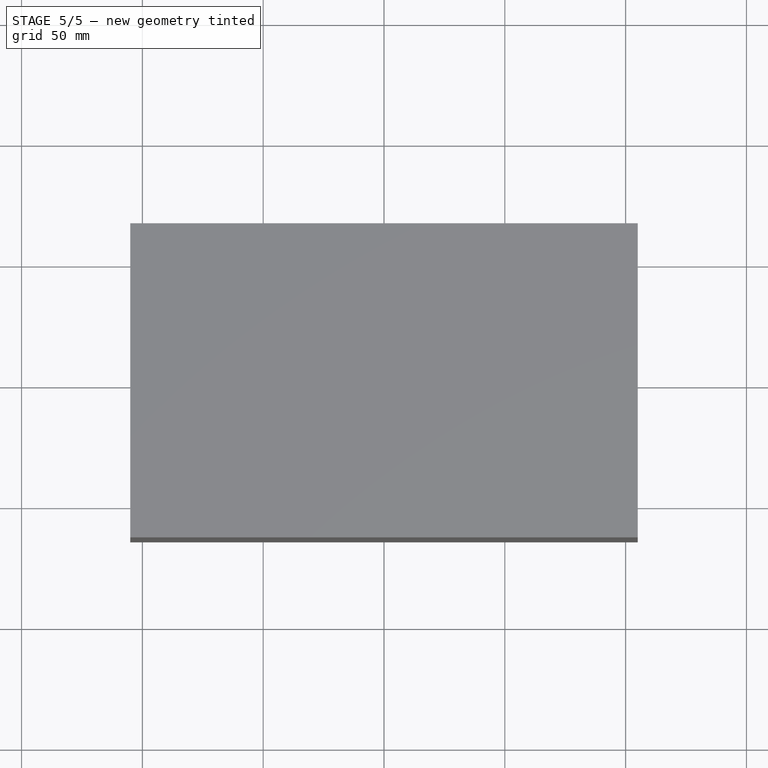
[diagram: stage 5 of 5 — top view after this stage's code; geometry added in this stage tinted green]
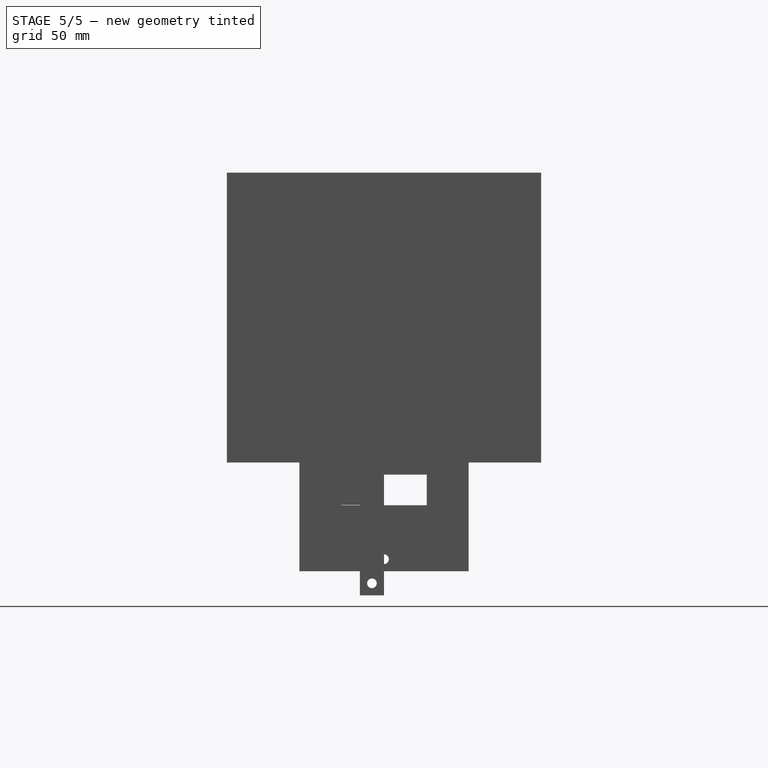
[diagram: stage 5 of 5 — right view after this stage's code; geometry added in this stage tinted green]
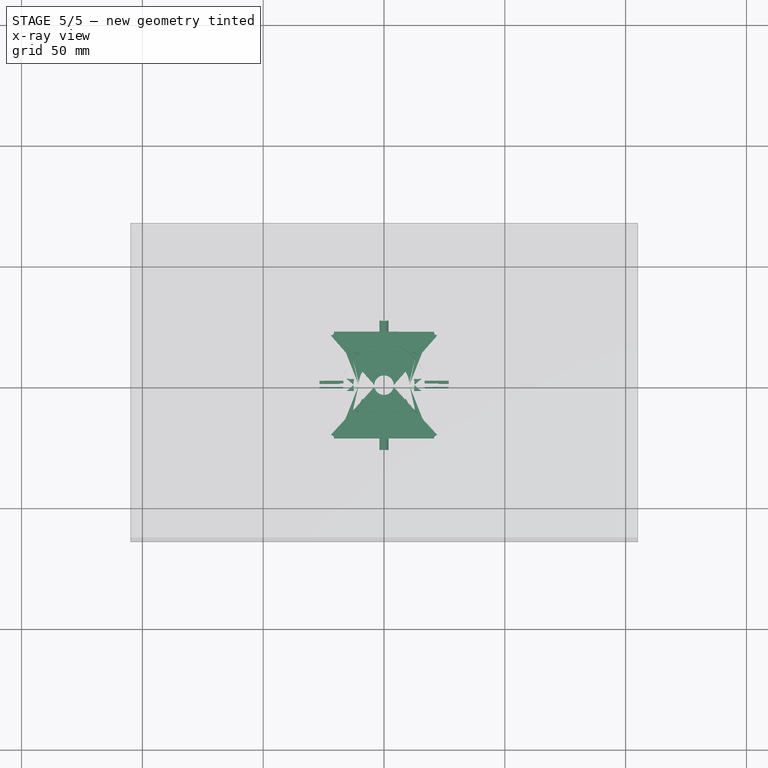
[diagram: stage 5 of 5 — x-ray composite at the top view; earlier geometry ghosted, this stage's added geometry solid]
FEATURE [PartDesign::PolarPattern] PolarPattern002
  Angle = 360
  Axis = -> Sketch024 [N_Axis]
  BaseFeature = -> Pocket009
  Occurrences = 4
  Originals = -> [Pocket009]
FEATURE [Sketcher::SketchObject] Sketch025
  FullyConstrained = true
  MapMode = 5
  Placement = pos=(0,0,13) rot=(0,0,1;0rad)
  Support = -> [PolarPattern002]
  sketch-geometry (1):
    g0: Circle CenterX=-12 CenterY=-12 CenterZ=0 NormalX=0 NormalY=0 NormalZ=1 AngleXU=0 Radius=1.5
  constraints (3):
    c: Diameter(g0) = 3
    c: DistanceX(g0,g-1) = 12
    c: DistanceY(g0,g-1) = 12
FEATURE [PartDesign::Pocket] Pocket010  label="Hueco inserto sujeccion tapa"
  BaseFeature = -> PolarPattern002
  Direction = (0,0,-1)
  Length = 8
  Length2 = 5
  Profile = -> Sketch025
  ReferenceAxis = -> Sketch025 [N_Axis]
  Type = 0
FEATURE [PartDesign::PolarPattern] PolarPattern003  label="Patron polar hueco inserto sujeccion tapa"
  Angle = 360
  Axis = -> Sketch025 [N_Axis]
  BaseFeature = -> Pocket010
  Occurrences = 4
  Originals = -> [Pocket010]
FEATURE [Sketcher::SketchObject] Sketch027
  FullyConstrained = true
  MapMode = 5
  Support = -> [XY_Plane005]
  sketch-geometry (6):
    g0: Circle CenterX=0 CenterY=0 CenterZ=0 NormalX=0 NormalY=0 NormalZ=1 AngleXU=0 Radius=10.5
    g1: LineSegment StartX=-17.3 StartY=-17.3 StartZ=0 EndX=-17.3 EndY=17.3 EndZ=0
    g2: LineSegment StartX=-17.3 StartY=17.3 StartZ=0 EndX=17.3 EndY=17.3 EndZ=0
    g3: LineSegment StartX=17.3 StartY=17.3 StartZ=0 EndX=17.3 EndY=-17.3 EndZ=0
    g4: LineSegment StartX=17.3 StartY=-17.3 StartZ=0 EndX=-17.3 EndY=-17.3 EndZ=0
    g5: GeomPoint X=0 Y=0 Z=0
  constraints (14):
    c: Coincident(g0,g-1)
    c: Coincident(g1,g2)
    c: Coincident(g2,g3)
    c: Coincident(g3,g4)
    c: Coincident(g4,g1)
    c: Horizontal(g2)
    c: Horizontal(g4)
    c: Vertical(g1)
    c: Vertical(g3)
    c: Symmetric(g2,g1,g5)
    c: Coincident(g5,g0)
    c: Diameter(g0) = 21
    c: Equal(g3,g2)
    c: DistanceY(g3,g3) = 34.6
FEATURE [PartDesign::Pad] Pad011  label="Anillo"
  Direction = (0,0,1)
  Length = 2
  Length2 = 10
  Profile = -> Sketch027
  ReferenceAxis = -> Sketch027 [N_Axis]
  Type = 0
FEATURE [Sketcher::SketchObject] Sketch030
  FullyConstrained = true
  MapMode = 5
  Support = -> [XY_Plane006]
  sketch-geometry (6):
    g0: LineSegment StartX=-25 StartY=-25 StartZ=0 EndX=-25 EndY=25 EndZ=0
    g1: LineSegment StartX=-25 StartY=25 StartZ=0 EndX=25 EndY=25 EndZ=0
    g2: LineSegment StartX=25 StartY=25 StartZ=0 EndX=25 EndY=-25 EndZ=0
    g3: LineSegment StartX=25 StartY=-25 StartZ=0 EndX=-25 EndY=-25 EndZ=0
    g4: GeomPoint X=0 Y=0 Z=0
    g5: Circle CenterX=0 CenterY=0 CenterZ=0 NormalX=0 NormalY=0 NormalZ=1 AngleXU=0 Radius=4
  constraints (14):
    c: Coincident(g0,g1)
    c: Coincident(g1,g2)
    c: Coincident(g2,g3)
    c: Coincident(g3,g0)
    c: Horizontal(g1)
    c: Horizontal(g3)
    c: Vertical(g0)
    c: Vertical(g2)
    c: Symmetric(g1,g0,g4)
    c: Coincident(g4,g-1)
    c: DistanceY(g2,g2) = 50
    c: DistanceX(g3,g3) = 50
    c: Coincident(g5,g4)
    c: Diameter(g5) = 8
FEATURE [PartDesign::Pad] Pad012  label="Base"
  Direction = (0,0,1)
  Length = 2
  Length2 = 10
  Profile = -> Sketch030
  ReferenceAxis = -> Sketch030 [N_Axis]
  Type = 0
FEATURE [Sketcher::SketchObject] Sketch032
  FullyConstrained = true
  MapMode = 5
  Placement = pos=(0,0,2) rot=(0,0,1;0rad)
  Support = -> [Pad012]
  sketch-geometry (1):
    g0: Circle CenterX=-22 CenterY=22 CenterZ=0 NormalX=0 NormalY=0 NormalZ=1 AngleXU=0 Radius=1.3
  constraints (3):
    c: Diameter(g0) = 2.6
    c: DistanceY(g-1,g0) = 22
    c: DistanceX(g0,g-1) = 22
FEATURE [PartDesign::Pocket] Pocket013  label="Hueco paso tornillo001"
  BaseFeature = -> Pad012
  Direction = (0,0,-1)
  Length = 5
  Length2 = 5
  Profile = -> Sketch032
  ReferenceAxis = -> Sketch032 [N_Axis]
  Type = 1
FEATURE [PartDesign::PolarPattern] PolarPattern006  label="Patron polar hueco paso tornillo001"
  Angle = 360
  Axis = -> Sketch032 [N_Axis]
  BaseFeature = -> Pocket013
  Occurrences = 4
  Originals = -> [Pocket013]
FEATURE [PartDesign::Body] Body006  label="TRASERA_DETECTOR"
  Group = -> [Sketch030,Pad012,Sketch032,Pocket013,PolarPattern006]
  Origin = -> Origin006
  Placement = pos=(0,105,30) rot=(-1,0,0;1.5708rad)
  Tip = -> PolarPattern006
FEATURE [Sketcher::SketchObject] Sketch058
  FullyConstrained = true
  MapMode = 5
  Placement = pos=(0,0,0) rot=(1,0,0;3.14159rad)
  sketch-geometry (5):
    g0: LineSegment StartX=0 StartY=-2.5 StartZ=0 EndX=0 EndY=2.5 EndZ=0
    g1: LineSegment StartX=0 StartY=2.5 StartZ=0 EndX=8 EndY=2.5 EndZ=0
    g2: LineSegment StartX=8 StartY=2.5 StartZ=0 EndX=8 EndY=-2.5 EndZ=0
    g3: LineSegment StartX=8 StartY=-2.5 StartZ=0 EndX=0 EndY=-2.5 EndZ=0
    g4: GeomPoint X=4 Y=0 Z=0
  constraints (13):
    c: Coincident(g0,g1)
    c: Coincident(g1,g2)
    c: Coincident(g2,g3)
    c: Coincident(g3,g0)
    c: Horizontal(g1)
    c: Horizontal(g3)
    c: Vertical(g0)
    c: Vertical(g2)
    c: Symmetric(g1,g0,g4)
    c: DistanceY(g2,g2) = 5
    c: DistanceX(g1,g1) = 8
    c: DistanceY(g-1,g4) = 0
    c: DistanceX(g-1,g4) = 4
FEATURE [PartDesign::Pocket] Pocket030  label="Hueco extraccion detector"
  BaseFeature = -> PolarPattern003
  Direction = (0,0,1)
  Length = 2
  Length2 = 5
  Profile = -> Sketch058
  ReferenceAxis = -> Sketch058 [N_Axis]
  Type = 0
FEATURE [Sketcher::SketchObject] Sketch090
  FullyConstrained = true
  MapMode = 5
  Placement = pos=(0,0,2) rot=(0,0,1;0rad)
  Support = -> [Pad011]
  sketch-geometry (1):
    g0: Circle CenterX=-12 CenterY=12 CenterZ=0 NormalX=0 NormalY=0 NormalZ=1 AngleXU=0 Radius=1.2
  constraints (3):
    c: Diameter(g0) = 2.4
    c: DistanceX(g0,g-1) = 12
    c: DistanceY(g-1,g0) = 12
FEATURE [PartDesign::Pocket] Pocket050  label="Hueco paso tornillo"
  BaseFeature = -> Pad011
  Direction = (0,0,-1)
  Length = 5
  Length2 = 5
  Profile = -> Sketch090
  ReferenceAxis = -> Sketch090 [N_Axis]
  Type = 0
FEATURE [PartDesign::PolarPattern] PolarPattern  label="Patron polar hueco paso tornillo"
  Angle = 360
  Axis = -> Sketch090 [N_Axis]
  BaseFeature = -> Pocket050
  Occurrences = 4
  Originals = -> [Pocket050]
FEATURE [PartDesign::Body] Body005  label="TAPA_DETECTOR"
  Group = -> [Sketch027,Pad011,Sketch090,Pocket050,PolarPattern]
  Origin = -> Origin005
  Placement = pos=(0,175,20) rot=(-1,0,0;1.5708rad)
  Tip = -> PolarPattern
FEATURE [Sketcher::SketchObject] Sketch130
  FullyConstrained = true
  MapMode = 5
  Support = -> [XY_Plane025]
  sketch-geometry (5):
    g0: LineSegment StartX=-26.8 StartY=-26.8 StartZ=0 EndX=-26.8 EndY=26.8 EndZ=0
    g1: LineSegment StartX=-26.8 StartY=26.8 StartZ=0 EndX=26.8 EndY=26.8 EndZ=0
    g2: LineSegment StartX=26.8 StartY=26.8 StartZ=0 EndX=26.8 EndY=-26.8 EndZ=0
    g3: LineSegment StartX=26.8 StartY=-26.8 StartZ=0 EndX=-26.8 EndY=-26.8 EndZ=0
    g4: GeomPoint X=0 Y=0 Z=0
  constraints (12):
    c: Coincident(g0,g1)
    c: Coincident(g1,g2)
    c: Coincident(g2,g3)
    c: Coincident(g3,g0)
    c: Horizontal(g1)
    c: Horizontal(g3)
    c: Vertical(g0)
    c: Vertical(g2)
    c: Symmetric(g1,g0,g4)
    c: Coincident(g4,g-1)
    c: Equal(g2,g1)
    c: DistanceY(g2,g2) = 53.6
FEATURE [PartDesign::Pad] Pad046  label="Base004"
  Direction = (0,0,1)
  Length = 10
  Length2 = 10
  Midplane = true
  Profile = -> Sketch130
  ReferenceAxis = -> Sketch130 [N_Axis]
  Type = 0
FEATURE [Sketcher::SketchObject] Sketch131
  FullyConstrained = true
  MapMode = 5
  Placement = pos=(0,0,5) rot=(0,0,1;0rad)
  Support = -> [Pad046]
  sketch-geometry (3):
    g0: Circle CenterX=0 CenterY=0 CenterZ=0 NormalX=0 NormalY=0 NormalZ=1 AngleXU=0 Radius=12.25
    g1: Circle CenterX=0 CenterY=0 CenterZ=0 NormalX=0 NormalY=0 NormalZ=1 AngleXU=0 Radius=17
    g2: GeomPoint X=0 Y=0 Z=0
  constraints (5):
    c: Coincident(g0,g-1)
    c: Coincident(g1,g0)
    c: Diameter(g0) = 24.5
    c: Diameter(g1) = 34
    c: Coincident(g2,g0)
FEATURE [PartDesign::Pocket] Pocket074  label="Rebaje_manguito"
  BaseFeature = -> Pad046
  Direction = (0,0,-1)
  Length = 5
  Length2 = 5
  Profile = -> Sketch131
  ReferenceAxis = -> Sketch131 [N_Axis]
  Type = 0
FEATURE [Sketcher::SketchObject] Sketch132
  FullyConstrained = true
  MapMode = 5
  Placement = pos=(0,0,5) rot=(0,0,1;0rad)
  Support = -> [Pocket074]
  sketch-geometry (5):
    g0: LineSegment StartX=-6.875 StartY=-6.875 StartZ=0 EndX=-6.875 EndY=6.875 EndZ=0
    g1: LineSegment StartX=-6.875 StartY=6.875 StartZ=0 EndX=6.875 EndY=6.875 EndZ=0
    g2: LineSegment StartX=6.875 StartY=6.875 StartZ=0 EndX=6.875 EndY=-6.875 EndZ=0
    g3: LineSegment StartX=6.875 StartY=-6.875 StartZ=0 EndX=-6.875 EndY=-6.875 EndZ=0
    g4: GeomPoint X=0 Y=0 Z=0
  constraints (12):
    c: Coincident(g0,g1)
    c: Coincident(g1,g2)
    c: Coincident(g2,g3)
    c: Coincident(g3,g0)
    c: Horizontal(g1)
    c: Horizontal(g3)
    c: Vertical(g0)
    c: Vertical(g2)
    c: Symmetric(g1,g0,g4)
    c: Coincident(g4,g-1)
    c: DistanceY(g2,g2) = 13.75
    c: DistanceX(g1,g1) = 13.75
FEATURE [PartDesign::Pocket] Pocket075  label="Hueco_probeta"
  BaseFeature = -> Pocket074
  Direction = (0,0,-1)
  Length = 5
  Length2 = 5
  Profile = -> Sketch132
  ReferenceAxis = -> Sketch132 [N_Axis]
  Type = 1
FEATURE [Sketcher::SketchObject] Sketch133
  FullyConstrained = true
  MapMode = 5
  Placement = pos=(0,-26.8,0) rot=(1,0,0;1.5708rad)
  Support = -> [Pocket075]
  sketch-geometry (1):
    g0: Circle CenterX=0 CenterY=0 CenterZ=0 NormalX=0 NormalY=0 NormalZ=1 AngleXU=0 Radius=2
  constraints (2):
    c: Coincident(g0,g-1)
    c: Diameter(g0) = 4
FEATURE [PartDesign::Pocket] Pocket076  label="Hueco insertos "
  BaseFeature = -> Pocket075
  Direction = (0,1,-2e-16)
  Length = 10
  Length2 = 5
  Profile = -> Sketch133
  ReferenceAxis = -> Sketch133 [N_Axis]
  Type = 0
FEATURE [PartDesign::PolarPattern] PolarPattern034  label="Patron polar hueco insertos"
  Angle = 360
  Axis = -> Z_Axis025
  BaseFeature = -> Pocket076
  Occurrences = 4
  Originals = -> [Pocket076]
FEATURE [PartDesign::Body] Body025  label="TAPA_NUEVA"
  Group = -> [Sketch130,Pad046,Sketch131,Pocket074,Sketch132,Pocket075,Sketch133,Pocket076,PolarPattern034]
  Origin = -> Origin025
  Placement = pos=(0,0,42) rot=(0,0,1;0rad)
  Tip = -> PolarPattern034
FEATURE [Sketcher::SketchObject] Sketch
  FullyConstrained = true
  MapMode = 5
  Placement = pos=(0,0,13) rot=(0,0,1;0rad)
  Support = -> [Pocket030]
  sketch-geometry (5):
    g0: LineSegment StartX=-15.5 StartY=-2.5 StartZ=0 EndX=-15.5 EndY=2.5 EndZ=0
    g1: LineSegment StartX=-15.5 StartY=2.5 StartZ=0 EndX=15.5 EndY=2.5 EndZ=0
    g2: LineSegment StartX=15.5 StartY=2.5 StartZ=0 EndX=15.5 EndY=-2.5 EndZ=0
    g3: LineSegment StartX=15.5 StartY=-2.5 StartZ=0 EndX=-15.5 EndY=-2.5 EndZ=0
    g4: GeomPoint X=0 Y=0 Z=0
  constraints (12):
    c: Coincident(g0,g1)
    c: Coincident(g1,g2)
    c: Coincident(g2,g3)
    c: Coincident(g3,g0)
    c: Horizontal(g1)
    c: Horizontal(g3)
    c: Vertical(g0)
    c: Vertical(g2)
    c: Symmetric(g1,g0,g4)
    c: Coincident(g4,g-1)
    c: DistanceX(g1,g1) = 31
    c: DistanceY(g2,g2) = 5
FEATURE [PartDesign::Pocket] Pocket  label="Hueco extraccion filtro"
  BaseFeature = -> Pocket030
  Direction = (0,0,-1)
  Length = 5
  Length2 = 5
  Profile = -> Sketch
  ReferenceAxis = -> Sketch [N_Axis]
  Type = 0
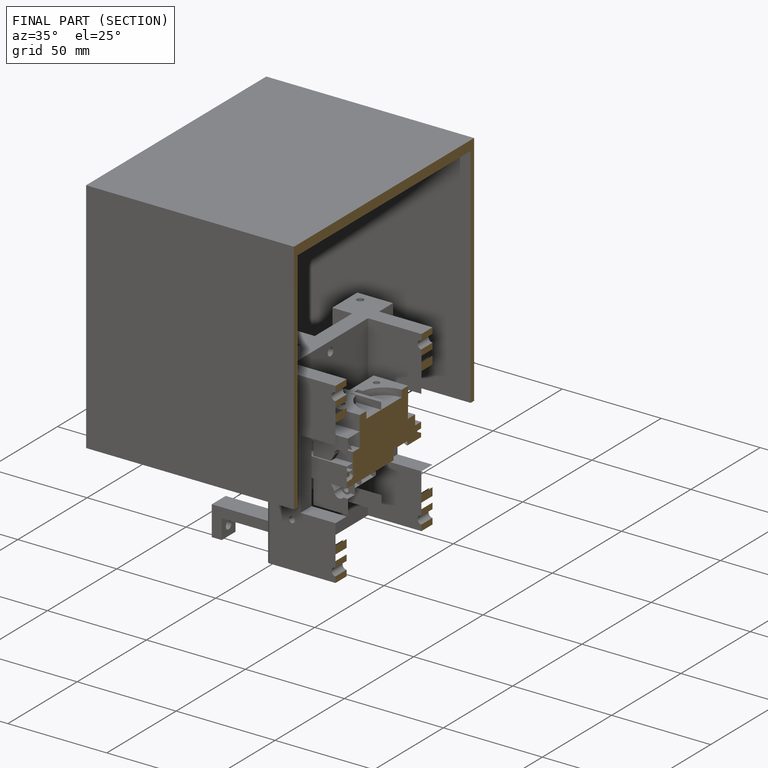
[diagram: finished part — half-section view (interior)]
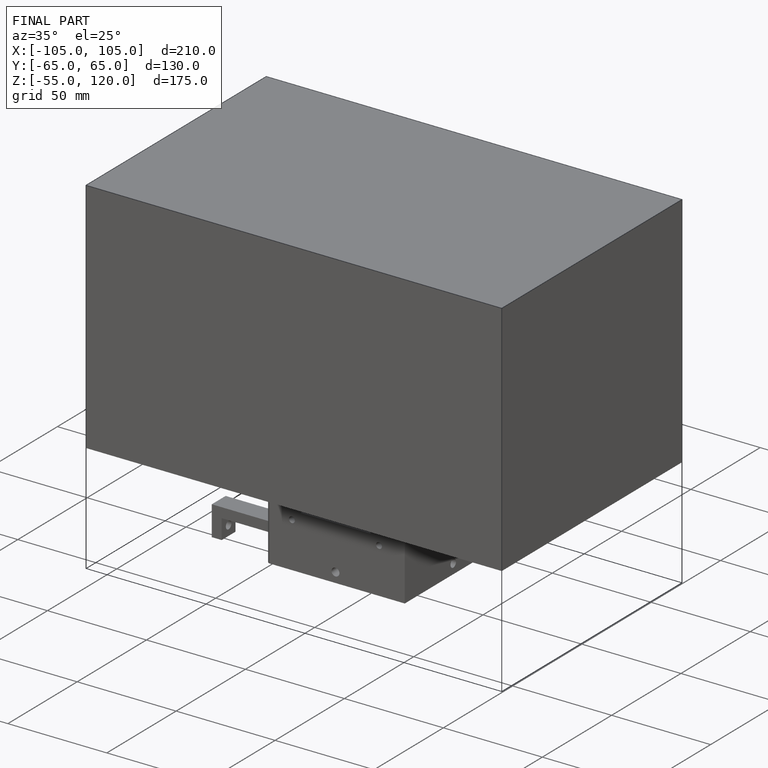
[diagram: finished part — iso view with bounding-box wireframe]
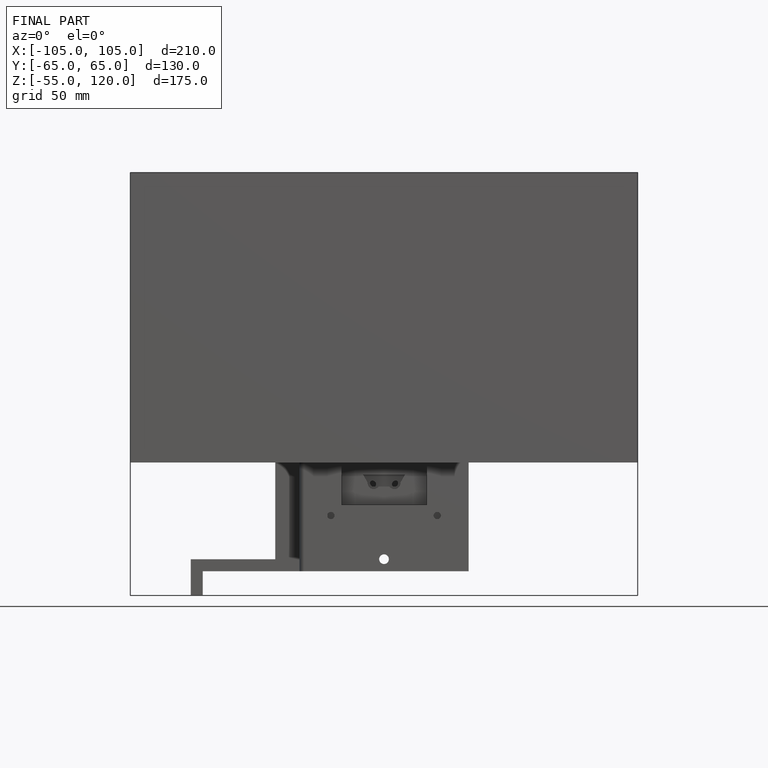
[diagram: finished part — front view with bounding-box wireframe]
